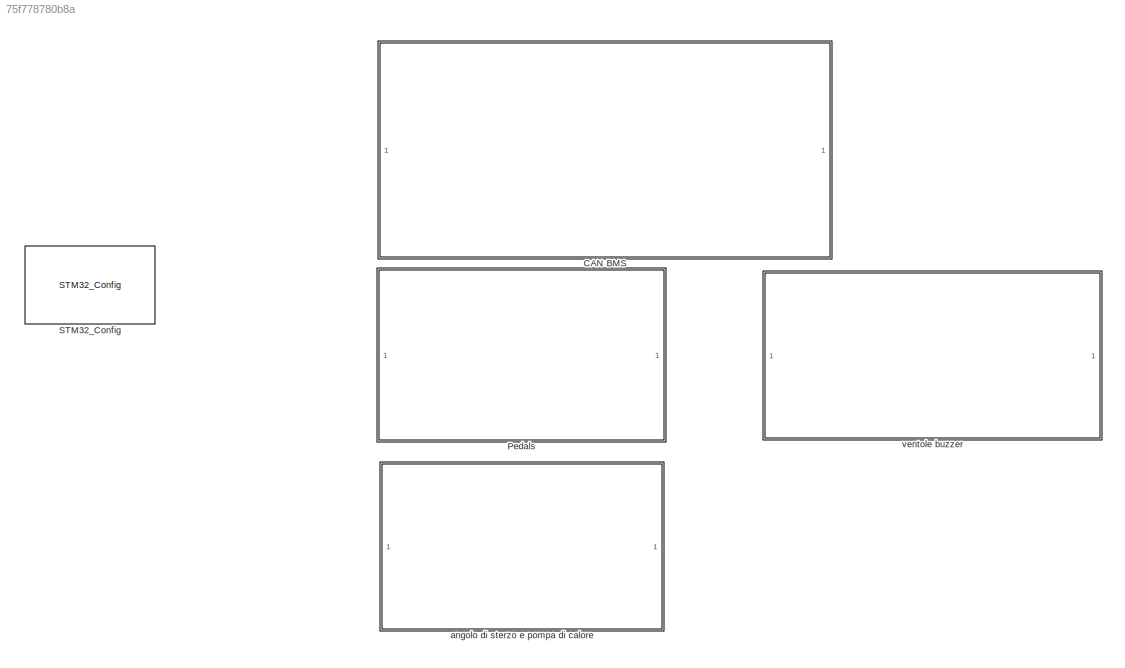
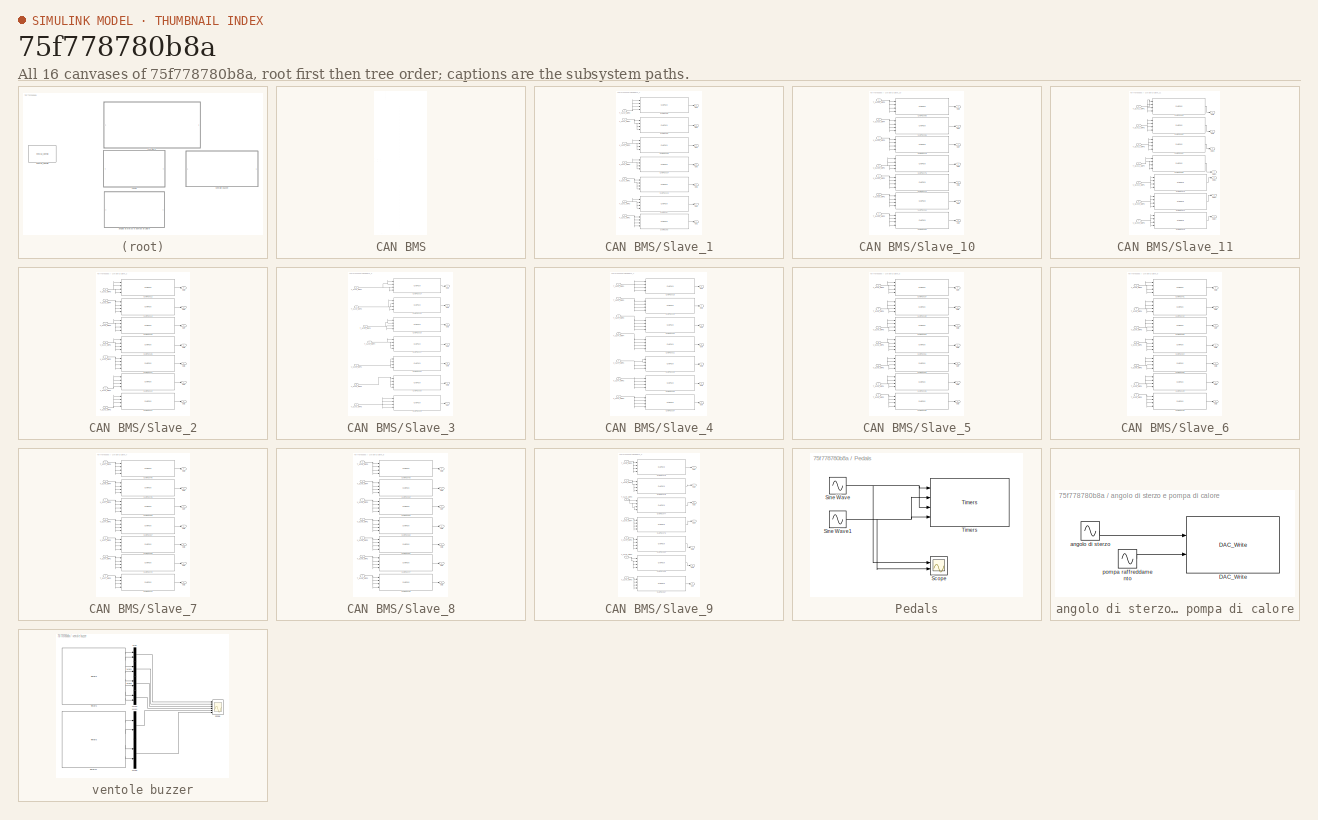
[diagram: thumbnail index - all 16 canvases of the model, root first then tree order]
MODEL slx_75f778780b8a
KIND model
CONFIG AbsTol = auto
CONFIG EnableMultiTasking = off
CONFIG FixedStep = 1e-3
CONFIG MaxStep = auto
CONFIG MinStep = auto
CONFIG RelTol = 1e-3
CONFIG SampleTimeConstraint = Unconstrained
CONFIG SolverName = FixedStepDiscrete
CONFIG StartTime = 0.0
CONFIG StopTime = inf
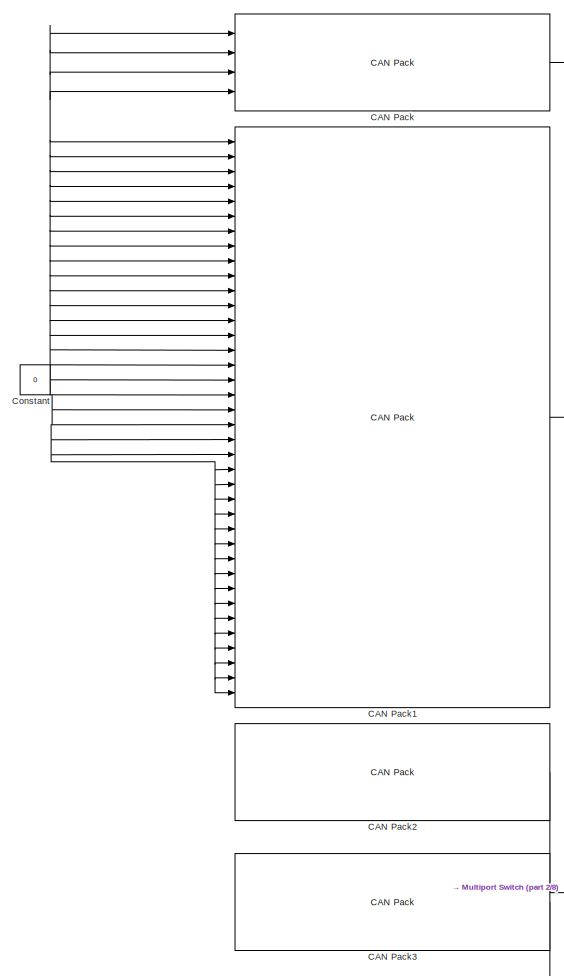
[diagram: CAN BMS - part 1/8, top left region]
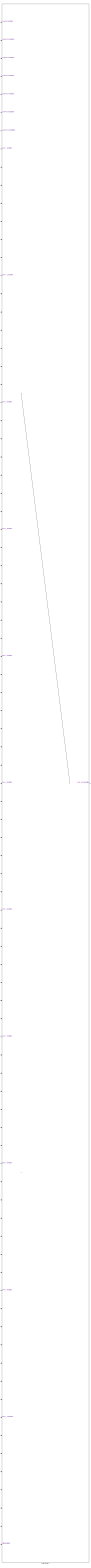
[diagram: CAN BMS - part 2/8, center side, full height]
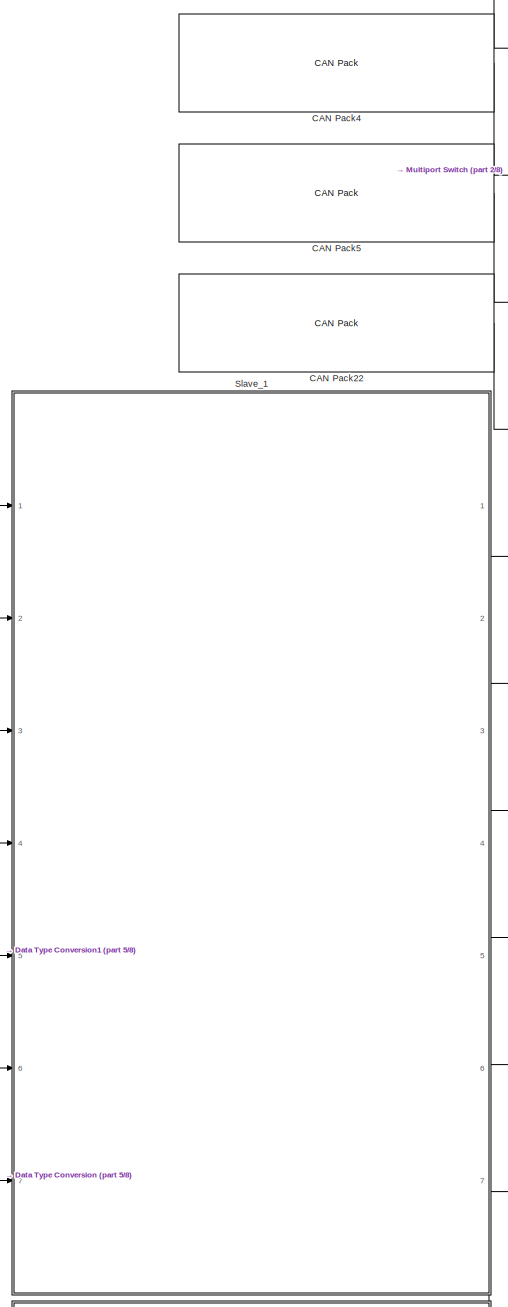
[diagram: CAN BMS - part 3/8, top left region]
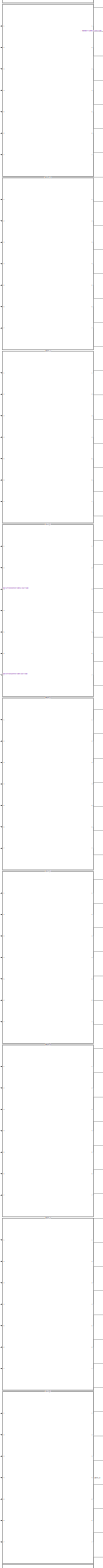
[diagram: CAN BMS - part 4/8, middle left region]
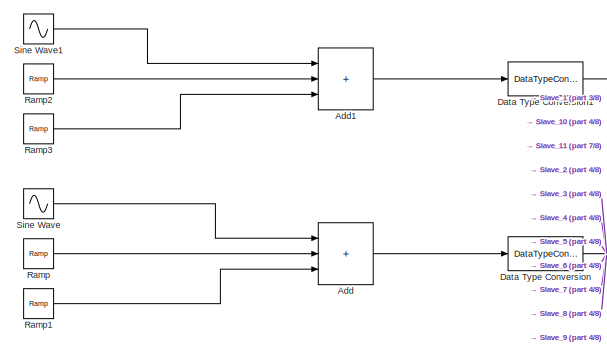
[diagram: CAN BMS - part 5/8, middle left region]
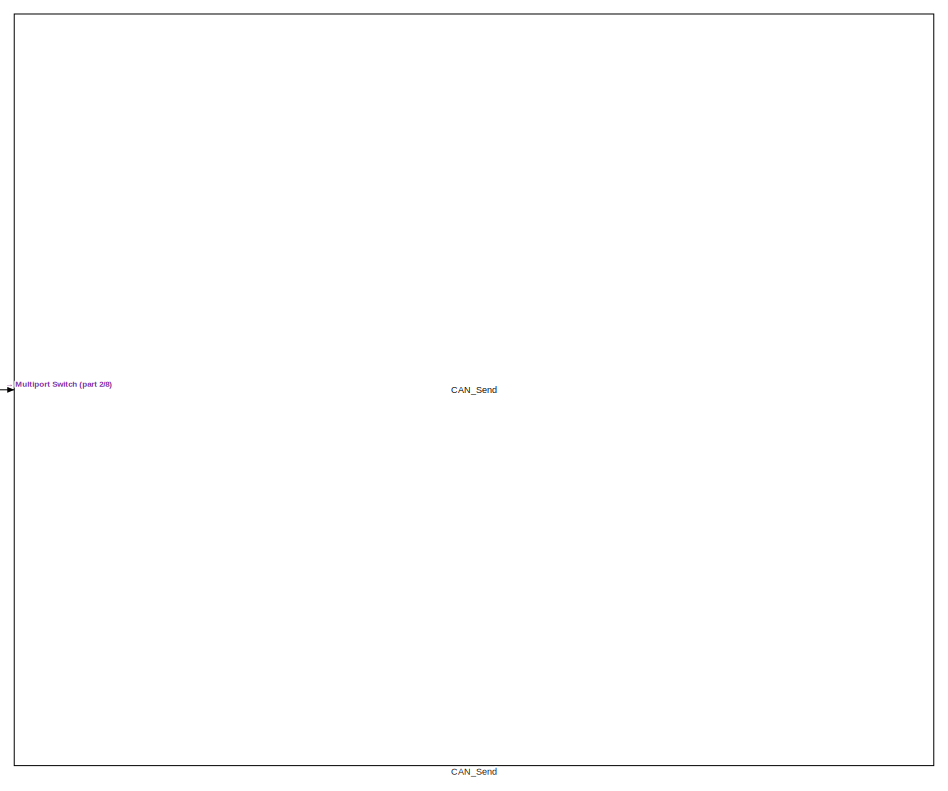
[diagram: CAN BMS - part 6/8, middle right region]
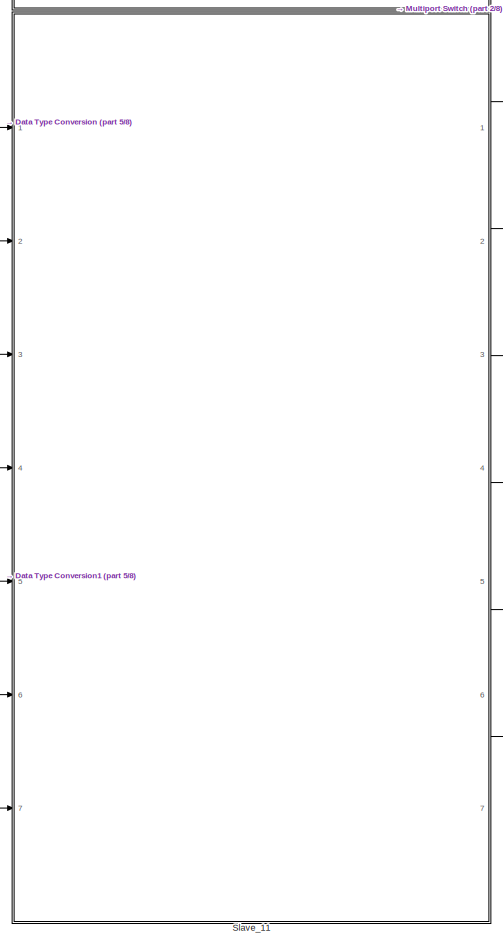
[diagram: CAN BMS - part 7/8, bottom left region]
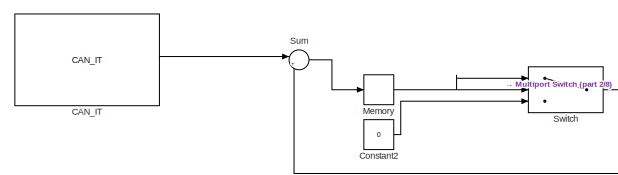
[diagram: CAN BMS - part 8/8, bottom left region]
BLOCK [SubSystem] CAN BMS
  Ports = []
  RequestExecContextInheritance = off
BLOCK [Sum] CAN BMS/Add
  IconShape = rectangular
  Inputs = +++
  Ports = [3, 1]
BLOCK [Sum] CAN BMS/Add1
  IconShape = rectangular
  Inputs = +++
  Ports = [3, 1]
BLOCK [Reference] CAN BMS/CAN Pack  REF=canmsglib/CAN Pack
  Ports = [4, 1]
  SourceBlock = canmsglib/CAN Pack
  SourceProductBaseCode = ME,XP,VN
  SourceType = CAN Pack
BLOCK [Reference] CAN BMS/CAN Pack1  REF=canmsglib/CAN Pack
  Ports = [38, 1]
  SourceBlock = canmsglib/CAN Pack
  SourceProductBaseCode = ME,XP,VN
  SourceType = CAN Pack
BLOCK [Reference] CAN BMS/CAN Pack2  REF=canmsglib/CAN Pack
  Ports = [4, 1]
  SourceBlock = canmsglib/CAN Pack
  SourceProductBaseCode = ME,XP,VN
  SourceType = CAN Pack
BLOCK [Reference] CAN BMS/CAN Pack22  REF=canmsglib/CAN Pack
  Ports = [5, 1]
  SourceBlock = canmsglib/CAN Pack
  SourceProductBaseCode = ME,XP,VN
  SourceType = CAN Pack
BLOCK [Reference] CAN BMS/CAN Pack3  REF=canmsglib/CAN Pack
  Ports = [4, 1]
  SourceBlock = canmsglib/CAN Pack
  SourceProductBaseCode = ME,XP,VN
  SourceType = CAN Pack
BLOCK [Reference] CAN BMS/CAN Pack4  REF=canmsglib/CAN Pack
  Ports = [2, 1]
  SourceBlock = canmsglib/CAN Pack
  SourceProductBaseCode = ME,XP,VN
  SourceType = CAN Pack
BLOCK [Reference] CAN BMS/CAN Pack5  REF=canmsglib/CAN Pack
  Ports = [5, 1]
  SourceBlock = canmsglib/CAN Pack
  SourceProductBaseCode = ME,XP,VN
  SourceType = CAN Pack
BLOCK [Reference] CAN BMS/CAN_IT  REF=CAN_Lib/CAN_IT
  NameLocation = top
  Ports = [0, 1]
  SourceBlock = CAN_Lib/CAN_IT
  SourceProductName = Target Support Package - STM32 Adapter
  SourceType = CAN_IT
BLOCK [Reference] CAN BMS/CAN_Send  REF=CAN_Lib/CAN_Send
  NameLocation = top
  Ports = [1]
  SourceBlock = CAN_Lib/CAN_Send
  SourceProductName = Target Support Package - STM32 Adapter
  SourceType = CAN_Send
BLOCK [Constant] CAN BMS/Constant
  Value = 0
BLOCK [Constant] CAN BMS/Constant2
  Value = 0
BLOCK [DataTypeConversion] CAN BMS/Data Type Conversion
  OutDataTypeStr = uint16
  RndMeth = Floor
  SaturateOnIntegerOverflow = off
BLOCK [DataTypeConversion] CAN BMS/Data Type Conversion1
  OutDataTypeStr = uint16
  RndMeth = Floor
  SaturateOnIntegerOverflow = off
BLOCK [Memory] CAN BMS/Memory
BLOCK [MultiPortSwitch] CAN BMS/Multiport Switch
  DataPortForDefault = Additional data port
  InputSameDT = off
  Inputs = 83
  Ports = [85, 1]
  SaturateOnIntegerOverflow = off
BLOCK [Reference] CAN BMS/Ramp  REF=simulink/Sources/Ramp
  Ports = [0, 1]
  SourceBlock = simulink/Sources/Ramp
  SourceProductBaseCode = SL
  SourceType = Ramp
BLOCK [Reference] CAN BMS/Ramp1  REF=simulink/Sources/Ramp
  Ports = [0, 1]
  SourceBlock = simulink/Sources/Ramp
  SourceProductBaseCode = SL
  SourceType = Ramp
BLOCK [Reference] CAN BMS/Ramp2  REF=simulink/Sources/Ramp
  Ports = [0, 1]
  SourceBlock = simulink/Sources/Ramp
  SourceProductBaseCode = SL
  SourceType = Ramp
BLOCK [Reference] CAN BMS/Ramp3  REF=simulink/Sources/Ramp
  Ports = [0, 1]
  SourceBlock = simulink/Sources/Ramp
  SourceProductBaseCode = SL
  SourceType = Ramp
BLOCK [Sin] CAN BMS/Sine Wave
  Amplitude = 0.05
  Frequency = 2
  Ports = [0, 1]
  SampleTime = 0
BLOCK [Sin] CAN BMS/Sine Wave1
  Amplitude = 0.05
  Frequency = 2
  Ports = [0, 1]
  SampleTime = 0
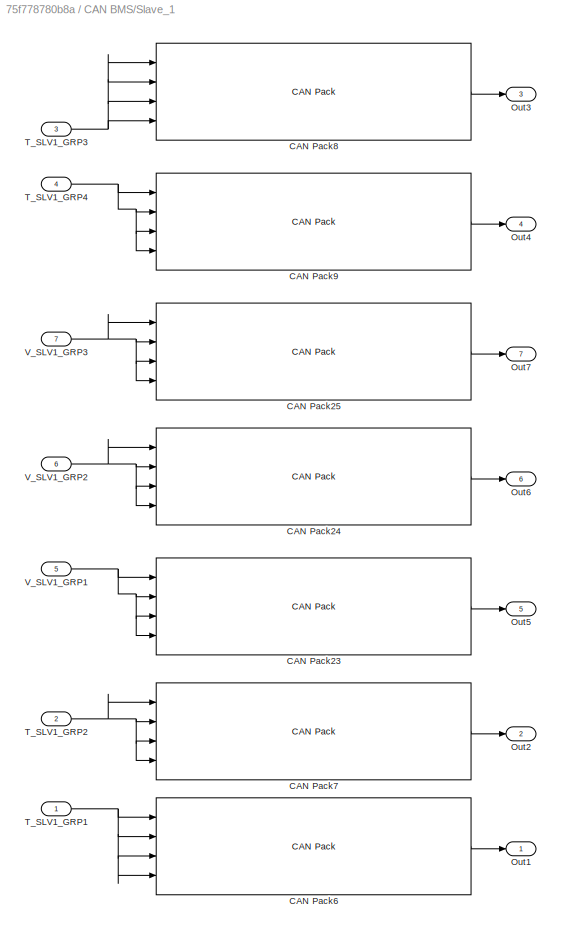
BLOCK [SubSystem] CAN BMS/Slave_1
  Ports = [7, 7]
  RequestExecContextInheritance = off
BLOCK [Reference] CAN BMS/Slave_1/CAN Pack23  REF=canmsglib/CAN Pack
  Ports = [4, 1]
  SourceBlock = canmsglib/CAN Pack
  SourceProductBaseCode = ME,XP,VN
  SourceType = CAN Pack
BLOCK [Reference] CAN BMS/Slave_1/CAN Pack24  REF=canmsglib/CAN Pack
  Ports = [4, 1]
  SourceBlock = canmsglib/CAN Pack
  SourceProductBaseCode = ME,XP,VN
  SourceType = CAN Pack
BLOCK [Reference] CAN BMS/Slave_1/CAN Pack25  REF=canmsglib/CAN Pack
  Ports = [4, 1]
  SourceBlock = canmsglib/CAN Pack
  SourceProductBaseCode = ME,XP,VN
  SourceType = CAN Pack
BLOCK [Reference] CAN BMS/Slave_1/CAN Pack6  REF=canmsglib/CAN Pack
  Ports = [4, 1]
  SourceBlock = canmsglib/CAN Pack
  SourceProductBaseCode = ME,XP,VN
  SourceType = CAN Pack
BLOCK [Reference] CAN BMS/Slave_1/CAN Pack7  REF=canmsglib/CAN Pack
  Ports = [4, 1]
  SourceBlock = canmsglib/CAN Pack
  SourceProductBaseCode = ME,XP,VN
  SourceType = CAN Pack
BLOCK [Reference] CAN BMS/Slave_1/CAN Pack8  REF=canmsglib/CAN Pack
  Ports = [4, 1]
  SourceBlock = canmsglib/CAN Pack
  SourceProductBaseCode = ME,XP,VN
  SourceType = CAN Pack
BLOCK [Reference] CAN BMS/Slave_1/CAN Pack9  REF=canmsglib/CAN Pack
  Ports = [4, 1]
  SourceBlock = canmsglib/CAN Pack
  SourceProductBaseCode = ME,XP,VN
  SourceType = CAN Pack
BLOCK [Outport] CAN BMS/Slave_1/Out1
BLOCK [Outport] CAN BMS/Slave_1/Out2
  Port = 2
BLOCK [Outport] CAN BMS/Slave_1/Out3
  Port = 3
BLOCK [Outport] CAN BMS/Slave_1/Out4
  Port = 4
BLOCK [Outport] CAN BMS/Slave_1/Out5
  Port = 5
BLOCK [Outport] CAN BMS/Slave_1/Out6
  Port = 6
BLOCK [Outport] CAN BMS/Slave_1/Out7
  Port = 7
BLOCK [Inport] CAN BMS/Slave_1/T_SLV1_GRP1
BLOCK [Inport] CAN BMS/Slave_1/T_SLV1_GRP2
  Port = 2
BLOCK [Inport] CAN BMS/Slave_1/T_SLV1_GRP3
  Port = 3
BLOCK [Inport] CAN BMS/Slave_1/T_SLV1_GRP4
  Port = 4
BLOCK [Inport] CAN BMS/Slave_1/V_SLV1_GRP1
  Port = 5
BLOCK [Inport] CAN BMS/Slave_1/V_SLV1_GRP2
  Port = 6
BLOCK [Inport] CAN BMS/Slave_1/V_SLV1_GRP3
  Port = 7
BLOCK [SubSystem] CAN BMS/Slave_10
  Ports = [7, 7]
  RequestExecContextInheritance = off
BLOCK [Reference] CAN BMS/Slave_10/CAN Pack63  REF=canmsglib/CAN Pack
  Ports = [4, 1]
  SourceBlock = canmsglib/CAN Pack
  SourceProductBaseCode = ME,XP,VN
  SourceType = CAN Pack
BLOCK [Reference] CAN BMS/Slave_10/CAN Pack64  REF=canmsglib/CAN Pack
  Ports = [4, 1]
  SourceBlock = canmsglib/CAN Pack
  SourceProductBaseCode = ME,XP,VN
  SourceType = CAN Pack
BLOCK [Reference] CAN BMS/Slave_10/CAN Pack65  REF=canmsglib/CAN Pack
  Ports = [4, 1]
  SourceBlock = canmsglib/CAN Pack
  SourceProductBaseCode = ME,XP,VN
  SourceType = CAN Pack
BLOCK [Reference] CAN BMS/Slave_10/CAN Pack66  REF=canmsglib/CAN Pack
  Ports = [4, 1]
  SourceBlock = canmsglib/CAN Pack
  SourceProductBaseCode = ME,XP,VN
  SourceType = CAN Pack
BLOCK [Reference] CAN BMS/Slave_10/CAN Pack73  REF=canmsglib/CAN Pack
  Ports = [4, 1]
  SourceBlock = canmsglib/CAN Pack
  SourceProductBaseCode = ME,XP,VN
  SourceType = CAN Pack
BLOCK [Reference] CAN BMS/Slave_10/CAN Pack74  REF=canmsglib/CAN Pack
  Ports = [4, 1]
  SourceBlock = canmsglib/CAN Pack
  SourceProductBaseCode = ME,XP,VN
  SourceType = CAN Pack
BLOCK [Reference] CAN BMS/Slave_10/CAN Pack75  REF=canmsglib/CAN Pack
  Ports = [4, 1]
  SourceBlock = canmsglib/CAN Pack
  SourceProductBaseCode = ME,XP,VN
  SourceType = CAN Pack
BLOCK [Outport] CAN BMS/Slave_10/Out1
BLOCK [Outport] CAN BMS/Slave_10/Out2
  Port = 2
BLOCK [Outport] CAN BMS/Slave_10/Out3
  Port = 3
BLOCK [Outport] CAN BMS/Slave_10/Out4
  Port = 4
BLOCK [Outport] CAN BMS/Slave_10/Out5
  Port = 5
BLOCK [Outport] CAN BMS/Slave_10/Out6
  Port = 6
BLOCK [Outport] CAN BMS/Slave_10/Out7
  Port = 7
BLOCK [Inport] CAN BMS/Slave_10/T_SLV10_GRP1
BLOCK [Inport] CAN BMS/Slave_10/T_SLV10_GRP2
  Port = 2
BLOCK [Inport] CAN BMS/Slave_10/T_SLV10_GRP3
  Port = 3
BLOCK [Inport] CAN BMS/Slave_10/T_SLV10_GRP4
  Port = 4
BLOCK [Inport] CAN BMS/Slave_10/V_SLV10_GRP1
  Port = 5
BLOCK [Inport] CAN BMS/Slave_10/V_SLV10_GRP2
  Port = 6
BLOCK [Inport] CAN BMS/Slave_10/V_SLV10_GRP3
  Port = 7
BLOCK [SubSystem] CAN BMS/Slave_11
  Ports = [7, 7]
  RequestExecContextInheritance = off
BLOCK [Reference] CAN BMS/Slave_11/CAN Pack70  REF=canmsglib/CAN Pack
  Ports = [4, 1]
  SourceBlock = canmsglib/CAN Pack
  SourceProductBaseCode = ME,XP,VN
  SourceType = CAN Pack
BLOCK [Reference] CAN BMS/Slave_11/CAN Pack71  REF=canmsglib/CAN Pack
  Ports = [4, 1]
  SourceBlock = canmsglib/CAN Pack
  SourceProductBaseCode = ME,XP,VN
  SourceType = CAN Pack
BLOCK [Reference] CAN BMS/Slave_11/CAN Pack72  REF=canmsglib/CAN Pack
  Ports = [4, 1]
  SourceBlock = canmsglib/CAN Pack
  SourceProductBaseCode = ME,XP,VN
  SourceType = CAN Pack
BLOCK [Reference] CAN BMS/Slave_11/CAN Pack80  REF=canmsglib/CAN Pack
  Ports = [4, 1]
  SourceBlock = canmsglib/CAN Pack
  SourceProductBaseCode = ME,XP,VN
  SourceType = CAN Pack
BLOCK [Reference] CAN BMS/Slave_11/CAN Pack81  REF=canmsglib/CAN Pack
  Ports = [4, 1]
  SourceBlock = canmsglib/CAN Pack
  SourceProductBaseCode = ME,XP,VN
  SourceType = CAN Pack
BLOCK [Reference] CAN BMS/Slave_11/CAN Pack82  REF=canmsglib/CAN Pack
  Ports = [4, 1]
  SourceBlock = canmsglib/CAN Pack
  SourceProductBaseCode = ME,XP,VN
  SourceType = CAN Pack
BLOCK [Reference] CAN BMS/Slave_11/CAN Pack83  REF=canmsglib/CAN Pack
  Ports = [4, 1]
  SourceBlock = canmsglib/CAN Pack
  SourceProductBaseCode = ME,XP,VN
  SourceType = CAN Pack
BLOCK [Outport] CAN BMS/Slave_11/Out10
  Port = 3
BLOCK [Outport] CAN BMS/Slave_11/Out11
  Port = 4
BLOCK [Outport] CAN BMS/Slave_11/Out12
  Port = 5
BLOCK [Outport] CAN BMS/Slave_11/Out13
  Port = 6
BLOCK [Outport] CAN BMS/Slave_11/Out14
  Port = 7
BLOCK [Outport] CAN BMS/Slave_11/Out8
BLOCK [Outport] CAN BMS/Slave_11/Out9
  Port = 2
BLOCK [Inport] CAN BMS/Slave_11/T_SLV11_GRP1
BLOCK [Inport] CAN BMS/Slave_11/T_SLV11_GRP2
  Port = 2
BLOCK [Inport] CAN BMS/Slave_11/T_SLV11_GRP3
  Port = 3
BLOCK [Inport] CAN BMS/Slave_11/T_SLV11_GRP4
  Port = 4
BLOCK [Inport] CAN BMS/Slave_11/V_SLV11_GRP1
  Port = 5
BLOCK [Inport] CAN BMS/Slave_11/V_SLV11_GRP2
  Port = 6
BLOCK [Inport] CAN BMS/Slave_11/V_SLV11_GRP3
  Port = 7
BLOCK [SubSystem] CAN BMS/Slave_2
  Ports = [7, 7]
  RequestExecContextInheritance = off
BLOCK [Reference] CAN BMS/Slave_2/CAN Pack10  REF=canmsglib/CAN Pack
  Ports = [4, 1]
  SourceBlock = canmsglib/CAN Pack
  SourceProductBaseCode = ME,XP,VN
  SourceType = CAN Pack
BLOCK [Reference] CAN BMS/Slave_2/CAN Pack11  REF=canmsglib/CAN Pack
  Ports = [4, 1]
  SourceBlock = canmsglib/CAN Pack
  SourceProductBaseCode = ME,XP,VN
  SourceType = CAN Pack
BLOCK [Reference] CAN BMS/Slave_2/CAN Pack12  REF=canmsglib/CAN Pack
  Ports = [4, 1]
  SourceBlock = canmsglib/CAN Pack
  SourceProductBaseCode = ME,XP,VN
  SourceType = CAN Pack
BLOCK [Reference] CAN BMS/Slave_2/CAN Pack13  REF=canmsglib/CAN Pack
  Ports = [4, 1]
  SourceBlock = canmsglib/CAN Pack
  SourceProductBaseCode = ME,XP,VN
  SourceType = CAN Pack
BLOCK [Reference] CAN BMS/Slave_2/CAN Pack26  REF=canmsglib/CAN Pack
  Ports = [4, 1]
  SourceBlock = canmsglib/CAN Pack
  SourceProductBaseCode = ME,XP,VN
  SourceType = CAN Pack
BLOCK [Reference] CAN BMS/Slave_2/CAN Pack27  REF=canmsglib/CAN Pack
  Ports = [4, 1]
  SourceBlock = canmsglib/CAN Pack
  SourceProductBaseCode = ME,XP,VN
  SourceType = CAN Pack
BLOCK [Reference] CAN BMS/Slave_2/CAN Pack32  REF=canmsglib/CAN Pack
  Ports = [4, 1]
  SourceBlock = canmsglib/CAN Pack
  SourceProductBaseCode = ME,XP,VN
  SourceType = CAN Pack
BLOCK [Outport] CAN BMS/Slave_2/Out1
BLOCK [Outport] CAN BMS/Slave_2/Out2
  Port = 2
BLOCK [Outport] CAN BMS/Slave_2/Out3
  Port = 3
BLOCK [Outport] CAN BMS/Slave_2/Out4
  Port = 4
BLOCK [Outport] CAN BMS/Slave_2/Out5
  Port = 5
BLOCK [Outport] CAN BMS/Slave_2/Out6
  Port = 6
BLOCK [Outport] CAN BMS/Slave_2/Out7
  Port = 7
BLOCK [Inport] CAN BMS/Slave_2/T_SLV2_GRP1
BLOCK [Inport] CAN BMS/Slave_2/T_SLV2_GRP2
  Port = 2
BLOCK [Inport] CAN BMS/Slave_2/T_SLV2_GRP3
  Port = 3
BLOCK [Inport] CAN BMS/Slave_2/T_SLV2_GRP4
  Port = 4
BLOCK [Inport] CAN BMS/Slave_2/V_SLV2_GRP1
  Port = 5
BLOCK [Inport] CAN BMS/Slave_2/V_SLV2_GRP2
  Port = 6
BLOCK [Inport] CAN BMS/Slave_2/V_SLV2_GRP3
  Port = 7
BLOCK [SubSystem] CAN BMS/Slave_3
  Ports = [7, 7]
  RequestExecContextInheritance = off
BLOCK [Reference] CAN BMS/Slave_3/CAN Pack14  REF=canmsglib/CAN Pack
  Ports = [4, 1]
  SourceBlock = canmsglib/CAN Pack
  SourceProductBaseCode = ME,XP,VN
  SourceType = CAN Pack
BLOCK [Reference] CAN BMS/Slave_3/CAN Pack15  REF=canmsglib/CAN Pack
  Ports = [4, 1]
  SourceBlock = canmsglib/CAN Pack
  SourceProductBaseCode = ME,XP,VN
  SourceType = CAN Pack
BLOCK [Reference] CAN BMS/Slave_3/CAN Pack16  REF=canmsglib/CAN Pack
  Ports = [4, 1]
  SourceBlock = canmsglib/CAN Pack
  SourceProductBaseCode = ME,XP,VN
  SourceType = CAN Pack
BLOCK [Reference] CAN BMS/Slave_3/CAN Pack17  REF=canmsglib/CAN Pack
  Ports = [4, 1]
  SourceBlock = canmsglib/CAN Pack
  SourceProductBaseCode = ME,XP,VN
  SourceType = CAN Pack
BLOCK [Reference] CAN BMS/Slave_3/CAN Pack29  REF=canmsglib/CAN Pack
  Ports = [4, 1]
  SourceBlock = canmsglib/CAN Pack
  SourceProductBaseCode = ME,XP,VN
  SourceType = CAN Pack
BLOCK [Reference] CAN BMS/Slave_3/CAN Pack30  REF=canmsglib/CAN Pack
  Ports = [4, 1]
  SourceBlock = canmsglib/CAN Pack
  SourceProductBaseCode = ME,XP,VN
  SourceType = CAN Pack
BLOCK [Reference] CAN BMS/Slave_3/CAN Pack31  REF=canmsglib/CAN Pack
  Ports = [4, 1]
  SourceBlock = canmsglib/CAN Pack
  SourceProductBaseCode = ME,XP,VN
  SourceType = CAN Pack
BLOCK [Outport] CAN BMS/Slave_3/Out1
BLOCK [Outport] CAN BMS/Slave_3/Out2
  Port = 2
BLOCK [Outport] CAN BMS/Slave_3/Out3
  Port = 3
BLOCK [Outport] CAN BMS/Slave_3/Out4
  Port = 4
BLOCK [Outport] CAN BMS/Slave_3/Out5
  Port = 5
BLOCK [Outport] CAN BMS/Slave_3/Out6
  Port = 6
BLOCK [Outport] CAN BMS/Slave_3/Out7
  Port = 7
BLOCK [Inport] CAN BMS/Slave_3/T_SLV3_GRP1
BLOCK [Inport] CAN BMS/Slave_3/T_SLV3_GRP2
  Port = 2
BLOCK [Inport] CAN BMS/Slave_3/T_SLV3_GRP3
  Port = 3
BLOCK [Inport] CAN BMS/Slave_3/T_SLV3_GRP4
  Port = 4
BLOCK [Inport] CAN BMS/Slave_3/V_SLV3_GRP1
  Port = 5
BLOCK [Inport] CAN BMS/Slave_3/V_SLV3_GRP2
  Port = 6
BLOCK [Inport] CAN BMS/Slave_3/V_SLV3_GRP3
  Port = 7
BLOCK [SubSystem] CAN BMS/Slave_4
  Ports = [7, 7]
  RequestExecContextInheritance = off
BLOCK [Reference] CAN BMS/Slave_4/CAN Pack18  REF=canmsglib/CAN Pack
  Ports = [4, 1]
  SourceBlock = canmsglib/CAN Pack
  SourceProductBaseCode = ME,XP,VN
  SourceType = CAN Pack
BLOCK [Reference] CAN BMS/Slave_4/CAN Pack19  REF=canmsglib/CAN Pack
  Ports = [4, 1]
  SourceBlock = canmsglib/CAN Pack
  SourceProductBaseCode = ME,XP,VN
  SourceType = CAN Pack
BLOCK [Reference] CAN BMS/Slave_4/CAN Pack20  REF=canmsglib/CAN Pack
  Ports = [4, 1]
  SourceBlock = canmsglib/CAN Pack
  SourceProductBaseCode = ME,XP,VN
  SourceType = CAN Pack
BLOCK [Reference] CAN BMS/Slave_4/CAN Pack21  REF=canmsglib/CAN Pack
  Ports = [4, 1]
  SourceBlock = canmsglib/CAN Pack
  SourceProductBaseCode = ME,XP,VN
  SourceType = CAN Pack
BLOCK [Reference] CAN BMS/Slave_4/CAN Pack28  REF=canmsglib/CAN Pack
  Ports = [4, 1]
  SourceBlock = canmsglib/CAN Pack
  SourceProductBaseCode = ME,XP,VN
  SourceType = CAN Pack
BLOCK [Reference] CAN BMS/Slave_4/CAN Pack33  REF=canmsglib/CAN Pack
  Ports = [4, 1]
  SourceBlock = canmsglib/CAN Pack
  SourceProductBaseCode = ME,XP,VN
  SourceType = CAN Pack
BLOCK [Reference] CAN BMS/Slave_4/CAN Pack34  REF=canmsglib/CAN Pack
  Ports = [4, 1]
  SourceBlock = canmsglib/CAN Pack
  SourceProductBaseCode = ME,XP,VN
  SourceType = CAN Pack
BLOCK [Outport] CAN BMS/Slave_4/Out1
BLOCK [Outport] CAN BMS/Slave_4/Out2
  Port = 2
BLOCK [Outport] CAN BMS/Slave_4/Out3
  Port = 3
BLOCK [Outport] CAN BMS/Slave_4/Out4
  Port = 4
BLOCK [Outport] CAN BMS/Slave_4/Out5
  Port = 5
BLOCK [Outport] CAN BMS/Slave_4/Out6
  Port = 6
BLOCK [Outport] CAN BMS/Slave_4/Out7
  Port = 7
BLOCK [Inport] CAN BMS/Slave_4/T_SLV4_GRP1
BLOCK [Inport] CAN BMS/Slave_4/T_SLV4_GRP2
  Port = 2
BLOCK [Inport] CAN BMS/Slave_4/T_SLV4_GRP3
  Port = 3
BLOCK [Inport] CAN BMS/Slave_4/T_SLV4_GRP4
  Port = 4
BLOCK [Inport] CAN BMS/Slave_4/V_SLV4_GRP1
  Port = 5
BLOCK [Inport] CAN BMS/Slave_4/V_SLV4_GRP2
  Port = 6
BLOCK [Inport] CAN BMS/Slave_4/V_SLV4_GRP3
  Port = 7
BLOCK [SubSystem] CAN BMS/Slave_5
  Ports = [7, 7]
  RequestExecContextInheritance = off
BLOCK [Reference] CAN BMS/Slave_5/CAN Pack35  REF=canmsglib/CAN Pack
  Ports = [4, 1]
  SourceBlock = canmsglib/CAN Pack
  SourceProductBaseCode = ME,XP,VN
  SourceType = CAN Pack
BLOCK [Reference] CAN BMS/Slave_5/CAN Pack36  REF=canmsglib/CAN Pack
  Ports = [4, 1]
  SourceBlock = canmsglib/CAN Pack
  SourceProductBaseCode = ME,XP,VN
  SourceType = CAN Pack
BLOCK [Reference] CAN BMS/Slave_5/CAN Pack37  REF=canmsglib/CAN Pack
  Ports = [4, 1]
  SourceBlock = canmsglib/CAN Pack
  SourceProductBaseCode = ME,XP,VN
  SourceType = CAN Pack
BLOCK [Reference] CAN BMS/Slave_5/CAN Pack38  REF=canmsglib/CAN Pack
  Ports = [4, 1]
  SourceBlock = canmsglib/CAN Pack
  SourceProductBaseCode = ME,XP,VN
  SourceType = CAN Pack
BLOCK [Reference] CAN BMS/Slave_5/CAN Pack51  REF=canmsglib/CAN Pack
  Ports = [4, 1]
  SourceBlock = canmsglib/CAN Pack
  SourceProductBaseCode = ME,XP,VN
  SourceType = CAN Pack
BLOCK [Reference] CAN BMS/Slave_5/CAN Pack52  REF=canmsglib/CAN Pack
  Ports = [4, 1]
  SourceBlock = canmsglib/CAN Pack
  SourceProductBaseCode = ME,XP,VN
  SourceType = CAN Pack
BLOCK [Reference] CAN BMS/Slave_5/CAN Pack53  REF=canmsglib/CAN Pack
  Ports = [4, 1]
  SourceBlock = canmsglib/CAN Pack
  SourceProductBaseCode = ME,XP,VN
  SourceType = CAN Pack
BLOCK [Outport] CAN BMS/Slave_5/Out2
BLOCK [Outport] CAN BMS/Slave_5/Out3
  Port = 2
BLOCK [Outport] CAN BMS/Slave_5/Out4
  Port = 3
BLOCK [Outport] CAN BMS/Slave_5/Out5
  Port = 4
BLOCK [Outport] CAN BMS/Slave_5/Out6
  Port = 5
BLOCK [Outport] CAN BMS/Slave_5/Out7
  Port = 6
BLOCK [Outport] CAN BMS/Slave_5/Out8
  Port = 7
BLOCK [Inport] CAN BMS/Slave_5/T_SLV5_GRP1
BLOCK [Inport] CAN BMS/Slave_5/T_SLV5_GRP2
  Port = 2
BLOCK [Inport] CAN BMS/Slave_5/T_SLV5_GRP3
  Port = 3
BLOCK [Inport] CAN BMS/Slave_5/T_SLV5_GRP4
  Port = 4
BLOCK [Inport] CAN BMS/Slave_5/V_SLV5_GRP1
  Port = 5
BLOCK [Inport] CAN BMS/Slave_5/V_SLV5_GRP2
  Port = 6
BLOCK [Inport] CAN BMS/Slave_5/V_SLV5_GRP3
  Port = 7
BLOCK [SubSystem] CAN BMS/Slave_6
  Ports = [7, 7]
  RequestExecContextInheritance = off
BLOCK [Reference] CAN BMS/Slave_6/CAN Pack39  REF=canmsglib/CAN Pack
  Ports = [4, 1]
  SourceBlock = canmsglib/CAN Pack
  SourceProductBaseCode = ME,XP,VN
  SourceType = CAN Pack
BLOCK [Reference] CAN BMS/Slave_6/CAN Pack40  REF=canmsglib/CAN Pack
  Ports = [4, 1]
  SourceBlock = canmsglib/CAN Pack
  SourceProductBaseCode = ME,XP,VN
  SourceType = CAN Pack
BLOCK [Reference] CAN BMS/Slave_6/CAN Pack41  REF=canmsglib/CAN Pack
  Ports = [4, 1]
  SourceBlock = canmsglib/CAN Pack
  SourceProductBaseCode = ME,XP,VN
  SourceType = CAN Pack
BLOCK [Reference] CAN BMS/Slave_6/CAN Pack42  REF=canmsglib/CAN Pack
  Ports = [4, 1]
  SourceBlock = canmsglib/CAN Pack
  SourceProductBaseCode = ME,XP,VN
  SourceType = CAN Pack
BLOCK [Reference] CAN BMS/Slave_6/CAN Pack54  REF=canmsglib/CAN Pack
  Ports = [4, 1]
  SourceBlock = canmsglib/CAN Pack
  SourceProductBaseCode = ME,XP,VN
  SourceType = CAN Pack
BLOCK [Reference] CAN BMS/Slave_6/CAN Pack55  REF=canmsglib/CAN Pack
  Ports = [4, 1]
  SourceBlock = canmsglib/CAN Pack
  SourceProductBaseCode = ME,XP,VN
  SourceType = CAN Pack
BLOCK [Reference] CAN BMS/Slave_6/CAN Pack56  REF=canmsglib/CAN Pack
  Ports = [4, 1]
  SourceBlock = canmsglib/CAN Pack
  SourceProductBaseCode = ME,XP,VN
  SourceType = CAN Pack
BLOCK [Outport] CAN BMS/Slave_6/Out1
BLOCK [Outport] CAN BMS/Slave_6/Out2
  Port = 2
BLOCK [Outport] CAN BMS/Slave_6/Out3
  Port = 3
BLOCK [Outport] CAN BMS/Slave_6/Out4
  Port = 4
BLOCK [Outport] CAN BMS/Slave_6/Out5
  NameLocation = left
  Port = 5
BLOCK [Outport] CAN BMS/Slave_6/Out6
  Port = 6
BLOCK [Outport] CAN BMS/Slave_6/Out7
  Port = 7
BLOCK [Inport] CAN BMS/Slave_6/T_SLV6_GRP1
BLOCK [Inport] CAN BMS/Slave_6/T_SLV6_GRP2
  Port = 2
BLOCK [Inport] CAN BMS/Slave_6/T_SLV6_GRP3
  Port = 3
BLOCK [Inport] CAN BMS/Slave_6/T_SLV6_GRP4
  Port = 4
BLOCK [Inport] CAN BMS/Slave_6/V_SLV6_GRP1
  Port = 5
BLOCK [Inport] CAN BMS/Slave_6/V_SLV6_GRP2
  Port = 6
BLOCK [Inport] CAN BMS/Slave_6/V_SLV6_GRP3
  Port = 7
BLOCK [SubSystem] CAN BMS/Slave_7
  Ports = [7, 7]
  RequestExecContextInheritance = off
BLOCK [Reference] CAN BMS/Slave_7/CAN Pack43  REF=canmsglib/CAN Pack
  Ports = [4, 1]
  SourceBlock = canmsglib/CAN Pack
  SourceProductBaseCode = ME,XP,VN
  SourceType = CAN Pack
BLOCK [Reference] CAN BMS/Slave_7/CAN Pack44  REF=canmsglib/CAN Pack
  Ports = [4, 1]
  SourceBlock = canmsglib/CAN Pack
  SourceProductBaseCode = ME,XP,VN
  SourceType = CAN Pack
BLOCK [Reference] CAN BMS/Slave_7/CAN Pack45  REF=canmsglib/CAN Pack
  Ports = [4, 1]
  SourceBlock = canmsglib/CAN Pack
  SourceProductBaseCode = ME,XP,VN
  SourceType = CAN Pack
BLOCK [Reference] CAN BMS/Slave_7/CAN Pack46  REF=canmsglib/CAN Pack
  Ports = [4, 1]
  SourceBlock = canmsglib/CAN Pack
  SourceProductBaseCode = ME,XP,VN
  SourceType = CAN Pack
BLOCK [Reference] CAN BMS/Slave_7/CAN Pack57  REF=canmsglib/CAN Pack
  Ports = [4, 1]
  SourceBlock = canmsglib/CAN Pack
  SourceProductBaseCode = ME,XP,VN
  SourceType = CAN Pack
BLOCK [Reference] CAN BMS/Slave_7/CAN Pack58  REF=canmsglib/CAN Pack
  Ports = [4, 1]
  SourceBlock = canmsglib/CAN Pack
  SourceProductBaseCode = ME,XP,VN
  SourceType = CAN Pack
BLOCK [Reference] CAN BMS/Slave_7/CAN Pack59  REF=canmsglib/CAN Pack
  Ports = [4, 1]
  SourceBlock = canmsglib/CAN Pack
  SourceProductBaseCode = ME,XP,VN
  SourceType = CAN Pack
BLOCK [Outport] CAN BMS/Slave_7/Out1
BLOCK [Outport] CAN BMS/Slave_7/Out2
  Port = 2
BLOCK [Outport] CAN BMS/Slave_7/Out3
  Port = 3
BLOCK [Outport] CAN BMS/Slave_7/Out4
  Port = 4
BLOCK [Outport] CAN BMS/Slave_7/Out5
  Port = 5
BLOCK [Outport] CAN BMS/Slave_7/Out6
  Port = 6
BLOCK [Outport] CAN BMS/Slave_7/Out7
  Port = 7
BLOCK [Inport] CAN BMS/Slave_7/T_SLV6_GRP4
  Port = 4
BLOCK [Inport] CAN BMS/Slave_7/T_SLV7_GRP1
BLOCK [Inport] CAN BMS/Slave_7/T_SLV7_GRP2
  Port = 2
BLOCK [Inport] CAN BMS/Slave_7/T_SLV7_GRP3
  Port = 3
BLOCK [Inport] CAN BMS/Slave_7/V_SLV7_GRP1
  Port = 5
BLOCK [Inport] CAN BMS/Slave_7/V_SLV7_GRP2
  Port = 6
BLOCK [Inport] CAN BMS/Slave_7/V_SLV7_GRP3
  Port = 7
BLOCK [SubSystem] CAN BMS/Slave_8
  Ports = [7, 7]
  RequestExecContextInheritance = off
BLOCK [Reference] CAN BMS/Slave_8/CAN Pack47  REF=canmsglib/CAN Pack
  Ports = [4, 1]
  SourceBlock = canmsglib/CAN Pack
  SourceProductBaseCode = ME,XP,VN
  SourceType = CAN Pack
BLOCK [Reference] CAN BMS/Slave_8/CAN Pack48  REF=canmsglib/CAN Pack
  Ports = [4, 1]
  SourceBlock = canmsglib/CAN Pack
  SourceProductBaseCode = ME,XP,VN
  SourceType = CAN Pack
BLOCK [Reference] CAN BMS/Slave_8/CAN Pack49  REF=canmsglib/CAN Pack
  Ports = [4, 1]
  SourceBlock = canmsglib/CAN Pack
  SourceProductBaseCode = ME,XP,VN
  SourceType = CAN Pack
BLOCK [Reference] CAN BMS/Slave_8/CAN Pack50  REF=canmsglib/CAN Pack
  Ports = [4, 1]
  SourceBlock = canmsglib/CAN Pack
  SourceProductBaseCode = ME,XP,VN
  SourceType = CAN Pack
BLOCK [Reference] CAN BMS/Slave_8/CAN Pack60  REF=canmsglib/CAN Pack
  Ports = [4, 1]
  SourceBlock = canmsglib/CAN Pack
  SourceProductBaseCode = ME,XP,VN
  SourceType = CAN Pack
BLOCK [Reference] CAN BMS/Slave_8/CAN Pack61  REF=canmsglib/CAN Pack
  Ports = [4, 1]
  SourceBlock = canmsglib/CAN Pack
  SourceProductBaseCode = ME,XP,VN
  SourceType = CAN Pack
BLOCK [Reference] CAN BMS/Slave_8/CAN Pack62  REF=canmsglib/CAN Pack
  Ports = [4, 1]
  SourceBlock = canmsglib/CAN Pack
  SourceProductBaseCode = ME,XP,VN
  SourceType = CAN Pack
BLOCK [Outport] CAN BMS/Slave_8/Out1
BLOCK [Outport] CAN BMS/Slave_8/Out2
  Port = 2
BLOCK [Outport] CAN BMS/Slave_8/Out3
  Port = 3
BLOCK [Outport] CAN BMS/Slave_8/Out4
  Port = 4
BLOCK [Outport] CAN BMS/Slave_8/Out5
  Port = 5
BLOCK [Outport] CAN BMS/Slave_8/Out6
  Port = 6
BLOCK [Outport] CAN BMS/Slave_8/Out7
  Port = 7
BLOCK [Inport] CAN BMS/Slave_8/T_SLV8_GRP1
BLOCK [Inport] CAN BMS/Slave_8/T_SLV8_GRP2
  Port = 2
BLOCK [Inport] CAN BMS/Slave_8/T_SLV8_GRP3
  Port = 3
BLOCK [Inport] CAN BMS/Slave_8/T_SLV8_GRP4
  Port = 4
BLOCK [Inport] CAN BMS/Slave_8/V_SLV8_GRP1
  Port = 5
BLOCK [Inport] CAN BMS/Slave_8/V_SLV8_GRP2
  Port = 6
BLOCK [Inport] CAN BMS/Slave_8/V_SLV8_GRP3
  Port = 7
BLOCK [SubSystem] CAN BMS/Slave_9
  Ports = [7, 7]
  RequestExecContextInheritance = off
BLOCK [Reference] CAN BMS/Slave_9/CAN Pack67  REF=canmsglib/CAN Pack
  Ports = [4, 1]
  SourceBlock = canmsglib/CAN Pack
  SourceProductBaseCode = ME,XP,VN
  SourceType = CAN Pack
BLOCK [Reference] CAN BMS/Slave_9/CAN Pack68  REF=canmsglib/CAN Pack
  Ports = [4, 1]
  SourceBlock = canmsglib/CAN Pack
  SourceProductBaseCode = ME,XP,VN
  SourceType = CAN Pack
BLOCK [Reference] CAN BMS/Slave_9/CAN Pack69  REF=canmsglib/CAN Pack
  Ports = [4, 1]
  SourceBlock = canmsglib/CAN Pack
  SourceProductBaseCode = ME,XP,VN
  SourceType = CAN Pack
BLOCK [Reference] CAN BMS/Slave_9/CAN Pack76  REF=canmsglib/CAN Pack
  Ports = [4, 1]
  SourceBlock = canmsglib/CAN Pack
  SourceProductBaseCode = ME,XP,VN
  SourceType = CAN Pack
BLOCK [Reference] CAN BMS/Slave_9/CAN Pack77  REF=canmsglib/CAN Pack
  Ports = [4, 1]
  SourceBlock = canmsglib/CAN Pack
  SourceProductBaseCode = ME,XP,VN
  SourceType = CAN Pack
BLOCK [Reference] CAN BMS/Slave_9/CAN Pack78  REF=canmsglib/CAN Pack
  Ports = [4, 1]
  SourceBlock = canmsglib/CAN Pack
  SourceProductBaseCode = ME,XP,VN
  SourceType = CAN Pack
BLOCK [Reference] CAN BMS/Slave_9/CAN Pack79  REF=canmsglib/CAN Pack
  Ports = [4, 1]
  SourceBlock = canmsglib/CAN Pack
  SourceProductBaseCode = ME,XP,VN
  SourceType = CAN Pack
BLOCK [Outport] CAN BMS/Slave_9/Out1
  Port = 7
BLOCK [Outport] CAN BMS/Slave_9/Out2
BLOCK [Outport] CAN BMS/Slave_9/Out3
  Port = 2
BLOCK [Outport] CAN BMS/Slave_9/Out4
  Port = 3
BLOCK [Outport] CAN BMS/Slave_9/Out5
  NameLocation = left
  Port = 4
BLOCK [Outport] CAN BMS/Slave_9/Out6
  Port = 5
BLOCK [Outport] CAN BMS/Slave_9/Out7
  Port = 6
BLOCK [Inport] CAN BMS/Slave_9/T_SLV9_GRP1
BLOCK [Inport] CAN BMS/Slave_9/T_SLV9_GRP2
  Port = 2
BLOCK [Inport] CAN BMS/Slave_9/T_SLV9_GRP3
  Port = 3
BLOCK [Inport] CAN BMS/Slave_9/T_SLV9_GRP4
  Port = 4
BLOCK [Inport] CAN BMS/Slave_9/V_SLV9_GRP1
  Port = 5
BLOCK [Inport] CAN BMS/Slave_9/V_SLV9_GRP2
  Port = 6
BLOCK [Inport] CAN BMS/Slave_9/V_SLV9_GRP3
  Port = 7
BLOCK [Sum] CAN BMS/Sum
  Inputs = |++
  Ports = [2, 1]
BLOCK [Switch] CAN BMS/Switch
  InputSameDT = off
  SaturateOnIntegerOverflow = off
  Threshold = 84
BLOCK [SubSystem] Pedals
  Ports = []
  RequestExecContextInheritance = off
BLOCK [Scope] Pedals/Scope
  Floating = off
  NumInputPorts = 2
  Ports = [2]
  ScopeSpecificationString = Simulink.scopes.TimeScopeBlockCfg('CurrentConfiguration', extmgr.ConfigurationSet(extmgr.Configuration('Core','General UI',true),extmgr.Configuration('Core','Source UI',true),extmgr.Configuration('Sources','WiredSimulink',true),extmgr.Configuration('Visuals','Time Domain',true,'SerializedDisplays',{struct('MinYLimReal','0.00000','MaxYLimReal','100.00000','YLabelReal','','MinYLimMag','0.00000','Max...<+1382ch>
BLOCK [Sin] Pedals/Sine Wave
  Amplitude = 35
  Bias = 55
  Ports = [0, 1]
  SampleTime = 0
BLOCK [Sin] Pedals/Sine Wave1
  Amplitude = 35
  Bias = 45
  Phase = -pi/2
  Ports = [0, 1]
  SampleTime = 0
BLOCK [Reference] Pedals/Timers  REF=TIMERS_Lib/Timers
  NameLocation = top
  Ports = [4]
  SourceBlock = TIMERS_Lib/Timers
  SourceProductName = Target Support Package - STM32 Adapter
  SourceType = Timers
BLOCK [Reference] STM32_Config  REF=STM32_Config_Lib/STM32_Config
  NameLocation = top
  Ports = []
  Priority = 0
  SourceBlock = STM32_Config_Lib/STM32_Config
  SourceProductName = Target Support Package - STM32 Adapter
  SourceType = STM32_Config
BLOCK [SubSystem] angolo di sterzo e pompa di calore
  Ports = []
  RequestExecContextInheritance = off
BLOCK [Reference] angolo di sterzo e pompa di calore/DAC_Write  REF=DAC_Lib/DAC_Write
  NameLocation = top
  Ports = [2]
  SourceBlock = DAC_Lib/DAC_Write
  SourceProductName = Target Support Package - STM32 Adapter
  SourceType = DAC_Write
BLOCK [Sin] angolo di sterzo e pompa di calore/angolo di sterzo
  Amplitude = 60
  Ports = [0, 1]
  SampleTime = 0
BLOCK [Sin] angolo di sterzo e pompa di calore/pompa raffreddamento
  Amplitude = 50
  Bias = 50
  Ports = [0, 1]
  SampleTime = 0
BLOCK [SubSystem] ventole buzzer
  Ports = []
  RequestExecContextInheritance = off
BLOCK [Mux] ventole buzzer/Mux
  DisplayOption = bar
  Inputs = 2
  Ports = [2, 1]
BLOCK [Mux] ventole buzzer/Mux1
  DisplayOption = bar
  Inputs = 2
  Ports = [2, 1]
BLOCK [Mux] ventole buzzer/Mux2
  DisplayOption = bar
  Inputs = 2
  Ports = [2, 1]
BLOCK [Mux] ventole buzzer/Mux3
  DisplayOption = bar
  Inputs = 2
  Ports = [2, 1]
BLOCK [Mux] ventole buzzer/Mux4
  DisplayOption = bar
  Inputs = 2
  Ports = [2, 1]
BLOCK [Mux] ventole buzzer/Mux5
  DisplayOption = bar
  Inputs = 2
  Ports = [2, 1]
BLOCK [Scope] ventole buzzer/Scope
  Floating = off
  NumInputPorts = 6
  Ports = [6]
  ScopeSpecificationString = Simulink.scopes.TimeScopeBlockCfg('CurrentConfiguration', extmgr.ConfigurationSet(extmgr.Configuration('Core','General UI',true),extmgr.Configuration('Core','Source UI',true),extmgr.Configuration('Sources','WiredSimulink',true,'DataLoggingVariableName','ScopeData1'),extmgr.Configuration('Visuals','Time Domain',true,'SerializedDisplays',{struct('MinYLimReal','-10','MaxYLimReal','10','YLabelReal',''...<+4323ch>
BLOCK [Reference] ventole buzzer/Timers  REF=TIMERS_Lib/Timers
  NameLocation = top
  Ports = [0, 8]
  SourceBlock = TIMERS_Lib/Timers
  SourceProductName = Target Support Package - STM32 Adapter
  SourceType = Timers
BLOCK [Reference] ventole buzzer/Timers1  REF=TIMERS_Lib/Timers
  NameLocation = top
  Ports = [0, 4]
  SourceBlock = TIMERS_Lib/Timers
  SourceProductName = Target Support Package - STM32 Adapter
  SourceType = Timers
LINE CAN BMS/Add1:1 -> CAN BMS/Data Type Conversion1:1
LINE CAN BMS/Add:1 -> CAN BMS/Data Type Conversion:1
LINE CAN BMS/CAN Pack1:1 -> CAN BMS/Multiport Switch:2
LINE CAN BMS/CAN Pack22:1 -> CAN BMS/Multiport Switch:7
LINE CAN BMS/CAN Pack2:1 -> CAN BMS/Multiport Switch:3
LINE CAN BMS/CAN Pack3:1 -> CAN BMS/Multiport Switch:4
LINE CAN BMS/CAN Pack4:1 -> CAN BMS/Multiport Switch:5
LINE CAN BMS/CAN Pack5:1 -> CAN BMS/Multiport Switch:6
LINE CAN BMS/CAN Pack:1 -> CAN BMS/Multiport Switch:1
LINE CAN BMS/CAN_IT:1 -> CAN BMS/Sum:1
LINE CAN BMS/Constant2:1 -> CAN BMS/Switch:3
NET CAN BMS/Constant:1 -> CAN BMS/CAN Pack1:1, CAN BMS/CAN Pack1:10, CAN BMS/CAN Pack1:11, CAN BMS/CAN Pack1:12, CAN BMS/CAN Pack1:13, CAN BMS/CAN Pack1:14, CAN BMS/CAN Pack1:15, CAN BMS/CAN Pack1:16, CAN BMS/CAN Pack1:17, CAN BMS/CAN Pack1:18, CAN BMS/CAN Pack1:19, CAN BMS/CAN Pack1:2, CAN BMS/CAN Pack1:20, CAN BMS/CAN Pack1:21, CAN BMS/CAN Pack1:22, CAN BMS/CAN Pack1:23, CAN BMS/CAN Pack1:24, CAN BMS/CAN Pack1:25, CAN BMS/CAN Pack1:26, CAN BMS/CAN Pack1:27, CAN BMS/CAN Pack1:28, CAN BMS/CAN Pack1:29, CAN BMS/CAN Pack1:3, CAN BMS/CAN Pack1:30, CAN BMS/CAN Pack1:31, CAN BMS/CAN Pack1:32, CAN BMS/CAN Pack1:33, CAN BMS/CAN Pack1:34, CAN BMS/CAN Pack1:35, CAN BMS/CAN Pack1:36, CAN BMS/CAN Pack1:37, CAN BMS/CAN Pack1:38, CAN BMS/CAN Pack1:4, CAN BMS/CAN Pack1:5, CAN BMS/CAN Pack1:6, CAN BMS/CAN Pack1:7, CAN BMS/CAN Pack1:8, CAN BMS/CAN Pack1:9, CAN BMS/CAN Pack:1, CAN BMS/CAN Pack:2, CAN BMS/CAN Pack:3, CAN BMS/CAN Pack:4
NET CAN BMS/Data Type Conversion1:1 -> CAN BMS/Slave_10:3, CAN BMS/Slave_10:4, CAN BMS/Slave_10:5, CAN BMS/Slave_11:5, CAN BMS/Slave_11:6, CAN BMS/Slave_11:7, CAN BMS/Slave_1:3, CAN BMS/Slave_1:4, CAN BMS/Slave_1:5, CAN BMS/Slave_2:5, CAN BMS/Slave_2:6, CAN BMS/Slave_2:7, CAN BMS/Slave_3:5, CAN BMS/Slave_3:6, CAN BMS/Slave_3:7, CAN BMS/Slave_4:1, CAN BMS/Slave_4:2, CAN BMS/Slave_4:3, CAN BMS/Slave_5:5, CAN BMS/Slave_5:6, CAN BMS/Slave_5:7, CAN BMS/Slave_6:5, CAN BMS/Slave_6:6, CAN BMS/Slave_6:7, CAN BMS/Slave_7:5, CAN BMS/Slave_7:6, CAN BMS/Slave_7:7, CAN BMS/Slave_8:5, CAN BMS/Slave_8:6, CAN BMS/Slave_8:7, CAN BMS/Slave_9:5, CAN BMS/Slave_9:6, CAN BMS/Slave_9:7
NET CAN BMS/Data Type Conversion:1 -> CAN BMS/Slave_10:1, CAN BMS/Slave_10:2, CAN BMS/Slave_10:6, CAN BMS/Slave_10:7, CAN BMS/Slave_11:1, CAN BMS/Slave_11:2, CAN BMS/Slave_11:3, CAN BMS/Slave_11:4, CAN BMS/Slave_1:1, CAN BMS/Slave_1:2, CAN BMS/Slave_1:6, CAN BMS/Slave_1:7, CAN BMS/Slave_2:1, CAN BMS/Slave_2:2, CAN BMS/Slave_2:3, CAN BMS/Slave_2:4, CAN BMS/Slave_3:1, CAN BMS/Slave_3:2, CAN BMS/Slave_3:3, CAN BMS/Slave_3:4, CAN BMS/Slave_4:4, CAN BMS/Slave_4:5, CAN BMS/Slave_4:6, CAN BMS/Slave_4:7, CAN BMS/Slave_5:1, CAN BMS/Slave_5:2, CAN BMS/Slave_5:3, CAN BMS/Slave_5:4, CAN BMS/Slave_6:1, CAN BMS/Slave_6:2, CAN BMS/Slave_6:3, CAN BMS/Slave_6:4, CAN BMS/Slave_7:1, CAN BMS/Slave_7:2, CAN BMS/Slave_7:3, CAN BMS/Slave_7:4, CAN BMS/Slave_8:1, CAN BMS/Slave_8:2, CAN BMS/Slave_8:3, CAN BMS/Slave_8:4, CAN BMS/Slave_9:1, CAN BMS/Slave_9:2, CAN BMS/Slave_9:3, CAN BMS/Slave_9:4
NET CAN BMS/Memory:1 -> CAN BMS/Switch:1, CAN BMS/Switch:2
LINE CAN BMS/Multiport Switch:1 -> CAN BMS/CAN_Send:1
LINE CAN BMS/Ramp1:1 -> CAN BMS/Add:3
LINE CAN BMS/Ramp2:1 -> CAN BMS/Add1:2
LINE CAN BMS/Ramp3:1 -> CAN BMS/Add1:3
LINE CAN BMS/Ramp:1 -> CAN BMS/Add:2
LINE CAN BMS/Sine Wave1:1 -> CAN BMS/Add1:1
LINE CAN BMS/Sine Wave:1 -> CAN BMS/Add:1
LINE CAN BMS/Slave_1/CAN Pack23:1 -> CAN BMS/Slave_1/Out5:1
LINE CAN BMS/Slave_1/CAN Pack24:1 -> CAN BMS/Slave_1/Out6:1
LINE CAN BMS/Slave_1/CAN Pack25:1 -> CAN BMS/Slave_1/Out7:1
LINE CAN BMS/Slave_1/CAN Pack6:1 -> CAN BMS/Slave_1/Out1:1
LINE CAN BMS/Slave_1/CAN Pack7:1 -> CAN BMS/Slave_1/Out2:1
LINE CAN BMS/Slave_1/CAN Pack8:1 -> CAN BMS/Slave_1/Out3:1
LINE CAN BMS/Slave_1/CAN Pack9:1 -> CAN BMS/Slave_1/Out4:1
NET CAN BMS/Slave_1/T_SLV1_GRP1:1 -> CAN BMS/Slave_1/CAN Pack6:1, CAN BMS/Slave_1/CAN Pack6:2, CAN BMS/Slave_1/CAN Pack6:3, CAN BMS/Slave_1/CAN Pack6:4
NET CAN BMS/Slave_1/T_SLV1_GRP2:1 -> CAN BMS/Slave_1/CAN Pack7:1, CAN BMS/Slave_1/CAN Pack7:2, CAN BMS/Slave_1/CAN Pack7:3, CAN BMS/Slave_1/CAN Pack7:4
NET CAN BMS/Slave_1/T_SLV1_GRP3:1 -> CAN BMS/Slave_1/CAN Pack8:1, CAN BMS/Slave_1/CAN Pack8:2, CAN BMS/Slave_1/CAN Pack8:3, CAN BMS/Slave_1/CAN Pack8:4
NET CAN BMS/Slave_1/T_SLV1_GRP4:1 -> CAN BMS/Slave_1/CAN Pack9:1, CAN BMS/Slave_1/CAN Pack9:2, CAN BMS/Slave_1/CAN Pack9:3, CAN BMS/Slave_1/CAN Pack9:4
NET CAN BMS/Slave_1/V_SLV1_GRP1:1 -> CAN BMS/Slave_1/CAN Pack23:1, CAN BMS/Slave_1/CAN Pack23:2, CAN BMS/Slave_1/CAN Pack23:3, CAN BMS/Slave_1/CAN Pack23:4
NET CAN BMS/Slave_1/V_SLV1_GRP2:1 -> CAN BMS/Slave_1/CAN Pack24:1, CAN BMS/Slave_1/CAN Pack24:2, CAN BMS/Slave_1/CAN Pack24:3, CAN BMS/Slave_1/CAN Pack24:4
NET CAN BMS/Slave_1/V_SLV1_GRP3:1 -> CAN BMS/Slave_1/CAN Pack25:1, CAN BMS/Slave_1/CAN Pack25:2, CAN BMS/Slave_1/CAN Pack25:3, CAN BMS/Slave_1/CAN Pack25:4
LINE CAN BMS/Slave_10/CAN Pack63:1 -> CAN BMS/Slave_10/Out1:1
LINE CAN BMS/Slave_10/CAN Pack64:1 -> CAN BMS/Slave_10/Out2:1
LINE CAN BMS/Slave_10/CAN Pack65:1 -> CAN BMS/Slave_10/Out3:1
LINE CAN BMS/Slave_10/CAN Pack66:1 -> CAN BMS/Slave_10/Out4:1
LINE CAN BMS/Slave_10/CAN Pack73:1 -> CAN BMS/Slave_10/Out7:1
LINE CAN BMS/Slave_10/CAN Pack74:1 -> CAN BMS/Slave_10/Out6:1
LINE CAN BMS/Slave_10/CAN Pack75:1 -> CAN BMS/Slave_10/Out5:1
NET CAN BMS/Slave_10/T_SLV10_GRP1:1 -> CAN BMS/Slave_10/CAN Pack63:1, CAN BMS/Slave_10/CAN Pack63:2, CAN BMS/Slave_10/CAN Pack63:3, CAN BMS/Slave_10/CAN Pack63:4
NET CAN BMS/Slave_10/T_SLV10_GRP2:1 -> CAN BMS/Slave_10/CAN Pack64:1, CAN BMS/Slave_10/CAN Pack64:2, CAN BMS/Slave_10/CAN Pack64:3, CAN BMS/Slave_10/CAN Pack64:4
NET CAN BMS/Slave_10/T_SLV10_GRP3:1 -> CAN BMS/Slave_10/CAN Pack65:1, CAN BMS/Slave_10/CAN Pack65:2, CAN BMS/Slave_10/CAN Pack65:3, CAN BMS/Slave_10/CAN Pack65:4
NET CAN BMS/Slave_10/T_SLV10_GRP4:1 -> CAN BMS/Slave_10/CAN Pack66:1, CAN BMS/Slave_10/CAN Pack66:2, CAN BMS/Slave_10/CAN Pack66:3, CAN BMS/Slave_10/CAN Pack66:4
NET CAN BMS/Slave_10/V_SLV10_GRP1:1 -> CAN BMS/Slave_10/CAN Pack75:1, CAN BMS/Slave_10/CAN Pack75:2, CAN BMS/Slave_10/CAN Pack75:3, CAN BMS/Slave_10/CAN Pack75:4
NET CAN BMS/Slave_10/V_SLV10_GRP2:1 -> CAN BMS/Slave_10/CAN Pack74:1, CAN BMS/Slave_10/CAN Pack74:2, CAN BMS/Slave_10/CAN Pack74:3, CAN BMS/Slave_10/CAN Pack74:4
NET CAN BMS/Slave_10/V_SLV10_GRP3:1 -> CAN BMS/Slave_10/CAN Pack73:1, CAN BMS/Slave_10/CAN Pack73:2, CAN BMS/Slave_10/CAN Pack73:3, CAN BMS/Slave_10/CAN Pack73:4
LINE CAN BMS/Slave_10:1 -> CAN BMS/Multiport Switch:15
LINE CAN BMS/Slave_10:2 -> CAN BMS/Multiport Switch:16
LINE CAN BMS/Slave_10:3 -> CAN BMS/Multiport Switch:17
LINE CAN BMS/Slave_10:4 -> CAN BMS/Multiport Switch:18
LINE CAN BMS/Slave_10:5 -> CAN BMS/Multiport Switch:19
LINE CAN BMS/Slave_10:6 -> CAN BMS/Multiport Switch:20
LINE CAN BMS/Slave_10:7 -> CAN BMS/Multiport Switch:21
LINE CAN BMS/Slave_11/CAN Pack70:1 -> CAN BMS/Slave_11/Out14:1
LINE CAN BMS/Slave_11/CAN Pack71:1 -> CAN BMS/Slave_11/Out13:1
LINE CAN BMS/Slave_11/CAN Pack72:1 -> CAN BMS/Slave_11/Out12:1
LINE CAN BMS/Slave_11/CAN Pack80:1 -> CAN BMS/Slave_11/Out11:1
LINE CAN BMS/Slave_11/CAN Pack81:1 -> CAN BMS/Slave_11/Out10:1
LINE CAN BMS/Slave_11/CAN Pack82:1 -> CAN BMS/Slave_11/Out9:1
LINE CAN BMS/Slave_11/CAN Pack83:1 -> CAN BMS/Slave_11/Out8:1
NET CAN BMS/Slave_11/T_SLV11_GRP1:1 -> CAN BMS/Slave_11/CAN Pack83:1, CAN BMS/Slave_11/CAN Pack83:2, CAN BMS/Slave_11/CAN Pack83:3, CAN BMS/Slave_11/CAN Pack83:4
NET CAN BMS/Slave_11/T_SLV11_GRP2:1 -> CAN BMS/Slave_11/CAN Pack82:1, CAN BMS/Slave_11/CAN Pack82:2, CAN BMS/Slave_11/CAN Pack82:3, CAN BMS/Slave_11/CAN Pack82:4
NET CAN BMS/Slave_11/T_SLV11_GRP3:1 -> CAN BMS/Slave_11/CAN Pack81:1, CAN BMS/Slave_11/CAN Pack81:2, CAN BMS/Slave_11/CAN Pack81:3, CAN BMS/Slave_11/CAN Pack81:4
NET CAN BMS/Slave_11/T_SLV11_GRP4:1 -> CAN BMS/Slave_11/CAN Pack80:1, CAN BMS/Slave_11/CAN Pack80:2, CAN BMS/Slave_11/CAN Pack80:3, CAN BMS/Slave_11/CAN Pack80:4
NET CAN BMS/Slave_11/V_SLV11_GRP1:1 -> CAN BMS/Slave_11/CAN Pack72:1, CAN BMS/Slave_11/CAN Pack72:2, CAN BMS/Slave_11/CAN Pack72:3, CAN BMS/Slave_11/CAN Pack72:4
NET CAN BMS/Slave_11/V_SLV11_GRP2:1 -> CAN BMS/Slave_11/CAN Pack71:1, CAN BMS/Slave_11/CAN Pack71:2, CAN BMS/Slave_11/CAN Pack71:3, CAN BMS/Slave_11/CAN Pack71:4
NET CAN BMS/Slave_11/V_SLV11_GRP3:1 -> CAN BMS/Slave_11/CAN Pack70:1, CAN BMS/Slave_11/CAN Pack70:2, CAN BMS/Slave_11/CAN Pack70:3, CAN BMS/Slave_11/CAN Pack70:4
LINE CAN BMS/Slave_11:1 -> CAN BMS/Multiport Switch:78
LINE CAN BMS/Slave_11:2 -> CAN BMS/Multiport Switch:79
LINE CAN BMS/Slave_11:3 -> CAN BMS/Multiport Switch:80
LINE CAN BMS/Slave_11:4 -> CAN BMS/Multiport Switch:81
LINE CAN BMS/Slave_11:5 -> CAN BMS/Multiport Switch:82
LINE CAN BMS/Slave_11:6 -> CAN BMS/Multiport Switch:83
LINE CAN BMS/Slave_11:7 -> CAN BMS/Multiport Switch:84
LINE CAN BMS/Slave_1:1 -> CAN BMS/Multiport Switch:8
LINE CAN BMS/Slave_1:2 -> CAN BMS/Multiport Switch:9
LINE CAN BMS/Slave_1:3 -> CAN BMS/Multiport Switch:10
LINE CAN BMS/Slave_1:4 -> CAN BMS/Multiport Switch:11
LINE CAN BMS/Slave_1:5 -> CAN BMS/Multiport Switch:12
LINE CAN BMS/Slave_1:6 -> CAN BMS/Multiport Switch:13
LINE CAN BMS/Slave_1:7 -> CAN BMS/Multiport Switch:14
LINE CAN BMS/Slave_2/CAN Pack10:1 -> CAN BMS/Slave_2/Out1:1
LINE CAN BMS/Slave_2/CAN Pack11:1 -> CAN BMS/Slave_2/Out2:1
LINE CAN BMS/Slave_2/CAN Pack12:1 -> CAN BMS/Slave_2/Out3:1
LINE CAN BMS/Slave_2/CAN Pack13:1 -> CAN BMS/Slave_2/Out4:1
LINE CAN BMS/Slave_2/CAN Pack26:1 -> CAN BMS/Slave_2/Out5:1
LINE CAN BMS/Slave_2/CAN Pack27:1 -> CAN BMS/Slave_2/Out6:1
LINE CAN BMS/Slave_2/CAN Pack32:1 -> CAN BMS/Slave_2/Out7:1
NET CAN BMS/Slave_2/T_SLV2_GRP1:1 -> CAN BMS/Slave_2/CAN Pack10:1, CAN BMS/Slave_2/CAN Pack10:2, CAN BMS/Slave_2/CAN Pack10:3, CAN BMS/Slave_2/CAN Pack10:4
NET CAN BMS/Slave_2/T_SLV2_GRP2:1 -> CAN BMS/Slave_2/CAN Pack11:1, CAN BMS/Slave_2/CAN Pack11:2, CAN BMS/Slave_2/CAN Pack11:3, CAN BMS/Slave_2/CAN Pack11:4
NET CAN BMS/Slave_2/T_SLV2_GRP3:1 -> CAN BMS/Slave_2/CAN Pack12:1, CAN BMS/Slave_2/CAN Pack12:2, CAN BMS/Slave_2/CAN Pack12:3, CAN BMS/Slave_2/CAN Pack12:4
NET CAN BMS/Slave_2/T_SLV2_GRP4:1 -> CAN BMS/Slave_2/CAN Pack13:1, CAN BMS/Slave_2/CAN Pack13:2, CAN BMS/Slave_2/CAN Pack13:3, CAN BMS/Slave_2/CAN Pack13:4
NET CAN BMS/Slave_2/V_SLV2_GRP1:1 -> CAN BMS/Slave_2/CAN Pack26:1, CAN BMS/Slave_2/CAN Pack26:2, CAN BMS/Slave_2/CAN Pack26:3, CAN BMS/Slave_2/CAN Pack26:4
NET CAN BMS/Slave_2/V_SLV2_GRP2:1 -> CAN BMS/Slave_2/CAN Pack27:1, CAN BMS/Slave_2/CAN Pack27:2, CAN BMS/Slave_2/CAN Pack27:3, CAN BMS/Slave_2/CAN Pack27:4
NET CAN BMS/Slave_2/V_SLV2_GRP3:1 -> CAN BMS/Slave_2/CAN Pack32:1, CAN BMS/Slave_2/CAN Pack32:2, CAN BMS/Slave_2/CAN Pack32:3, CAN BMS/Slave_2/CAN Pack32:4
LINE CAN BMS/Slave_2:1 -> CAN BMS/Multiport Switch:22
LINE CAN BMS/Slave_2:2 -> CAN BMS/Multiport Switch:23
LINE CAN BMS/Slave_2:3 -> CAN BMS/Multiport Switch:24
LINE CAN BMS/Slave_2:4 -> CAN BMS/Multiport Switch:25
LINE CAN BMS/Slave_2:5 -> CAN BMS/Multiport Switch:26
LINE CAN BMS/Slave_2:6 -> CAN BMS/Multiport Switch:27
LINE CAN BMS/Slave_2:7 -> CAN BMS/Multiport Switch:28
LINE CAN BMS/Slave_3/CAN Pack14:1 -> CAN BMS/Slave_3/Out1:1
LINE CAN BMS/Slave_3/CAN Pack15:1 -> CAN BMS/Slave_3/Out2:1
LINE CAN BMS/Slave_3/CAN Pack16:1 -> CAN BMS/Slave_3/Out3:1
LINE CAN BMS/Slave_3/CAN Pack17:1 -> CAN BMS/Slave_3/Out4:1
LINE CAN BMS/Slave_3/CAN Pack29:1 -> CAN BMS/Slave_3/Out7:1
LINE CAN BMS/Slave_3/CAN Pack30:1 -> CAN BMS/Slave_3/Out6:1
LINE CAN BMS/Slave_3/CAN Pack31:1 -> CAN BMS/Slave_3/Out5:1
NET CAN BMS/Slave_3/T_SLV3_GRP1:1 -> CAN BMS/Slave_3/CAN Pack14:1, CAN BMS/Slave_3/CAN Pack14:2, CAN BMS/Slave_3/CAN Pack14:3, CAN BMS/Slave_3/CAN Pack14:4
NET CAN BMS/Slave_3/T_SLV3_GRP2:1 -> CAN BMS/Slave_3/CAN Pack15:1, CAN BMS/Slave_3/CAN Pack15:2, CAN BMS/Slave_3/CAN Pack15:3, CAN BMS/Slave_3/CAN Pack15:4
NET CAN BMS/Slave_3/T_SLV3_GRP3:1 -> CAN BMS/Slave_3/CAN Pack16:1, CAN BMS/Slave_3/CAN Pack16:2, CAN BMS/Slave_3/CAN Pack16:3, CAN BMS/Slave_3/CAN Pack16:4
NET CAN BMS/Slave_3/T_SLV3_GRP4:1 -> CAN BMS/Slave_3/CAN Pack17:1, CAN BMS/Slave_3/CAN Pack17:2, CAN BMS/Slave_3/CAN Pack17:3, CAN BMS/Slave_3/CAN Pack17:4
NET CAN BMS/Slave_3/V_SLV3_GRP1:1 -> CAN BMS/Slave_3/CAN Pack31:1, CAN BMS/Slave_3/CAN Pack31:2, CAN BMS/Slave_3/CAN Pack31:3, CAN BMS/Slave_3/CAN Pack31:4
NET CAN BMS/Slave_3/V_SLV3_GRP2:1 -> CAN BMS/Slave_3/CAN Pack30:1, CAN BMS/Slave_3/CAN Pack30:2, CAN BMS/Slave_3/CAN Pack30:3, CAN BMS/Slave_3/CAN Pack30:4
NET CAN BMS/Slave_3/V_SLV3_GRP3:1 -> CAN BMS/Slave_3/CAN Pack29:1, CAN BMS/Slave_3/CAN Pack29:2, CAN BMS/Slave_3/CAN Pack29:3, CAN BMS/Slave_3/CAN Pack29:4
LINE CAN BMS/Slave_3:1 -> CAN BMS/Multiport Switch:29
LINE CAN BMS/Slave_3:2 -> CAN BMS/Multiport Switch:30
LINE CAN BMS/Slave_3:3 -> CAN BMS/Multiport Switch:31
LINE CAN BMS/Slave_3:4 -> CAN BMS/Multiport Switch:32
LINE CAN BMS/Slave_3:5 -> CAN BMS/Multiport Switch:33
LINE CAN BMS/Slave_3:6 -> CAN BMS/Multiport Switch:34
LINE CAN BMS/Slave_3:7 -> CAN BMS/Multiport Switch:35
LINE CAN BMS/Slave_4/CAN Pack18:1 -> CAN BMS/Slave_4/Out1:1
LINE CAN BMS/Slave_4/CAN Pack19:1 -> CAN BMS/Slave_4/Out2:1
LINE CAN BMS/Slave_4/CAN Pack20:1 -> CAN BMS/Slave_4/Out3:1
LINE CAN BMS/Slave_4/CAN Pack21:1 -> CAN BMS/Slave_4/Out4:1
LINE CAN BMS/Slave_4/CAN Pack28:1 -> CAN BMS/Slave_4/Out5:1
LINE CAN BMS/Slave_4/CAN Pack33:1 -> CAN BMS/Slave_4/Out6:1
LINE CAN BMS/Slave_4/CAN Pack34:1 -> CAN BMS/Slave_4/Out7:1
NET CAN BMS/Slave_4/T_SLV4_GRP1:1 -> CAN BMS/Slave_4/CAN Pack18:1, CAN BMS/Slave_4/CAN Pack18:2, CAN BMS/Slave_4/CAN Pack18:3, CAN BMS/Slave_4/CAN Pack18:4
NET CAN BMS/Slave_4/T_SLV4_GRP2:1 -> CAN BMS/Slave_4/CAN Pack19:1, CAN BMS/Slave_4/CAN Pack19:2, CAN BMS/Slave_4/CAN Pack19:3, CAN BMS/Slave_4/CAN Pack19:4
NET CAN BMS/Slave_4/T_SLV4_GRP3:1 -> CAN BMS/Slave_4/CAN Pack20:1, CAN BMS/Slave_4/CAN Pack20:2, CAN BMS/Slave_4/CAN Pack20:3, CAN BMS/Slave_4/CAN Pack20:4
NET CAN BMS/Slave_4/T_SLV4_GRP4:1 -> CAN BMS/Slave_4/CAN Pack21:1, CAN BMS/Slave_4/CAN Pack21:2, CAN BMS/Slave_4/CAN Pack21:3, CAN BMS/Slave_4/CAN Pack21:4
NET CAN BMS/Slave_4/V_SLV4_GRP1:1 -> CAN BMS/Slave_4/CAN Pack28:1, CAN BMS/Slave_4/CAN Pack28:2, CAN BMS/Slave_4/CAN Pack28:3, CAN BMS/Slave_4/CAN Pack28:4
NET CAN BMS/Slave_4/V_SLV4_GRP2:1 -> CAN BMS/Slave_4/CAN Pack33:1, CAN BMS/Slave_4/CAN Pack33:2, CAN BMS/Slave_4/CAN Pack33:3, CAN BMS/Slave_4/CAN Pack33:4
NET CAN BMS/Slave_4/V_SLV4_GRP3:1 -> CAN BMS/Slave_4/CAN Pack34:1, CAN BMS/Slave_4/CAN Pack34:2, CAN BMS/Slave_4/CAN Pack34:3, CAN BMS/Slave_4/CAN Pack34:4
LINE CAN BMS/Slave_4:1 -> CAN BMS/Multiport Switch:36
LINE CAN BMS/Slave_4:2 -> CAN BMS/Multiport Switch:37
LINE CAN BMS/Slave_4:3 -> CAN BMS/Multiport Switch:38
LINE CAN BMS/Slave_4:4 -> CAN BMS/Multiport Switch:39
LINE CAN BMS/Slave_4:5 -> CAN BMS/Multiport Switch:40
LINE CAN BMS/Slave_4:6 -> CAN BMS/Multiport Switch:41
LINE CAN BMS/Slave_4:7 -> CAN BMS/Multiport Switch:42
LINE CAN BMS/Slave_5/CAN Pack35:1 -> CAN BMS/Slave_5/Out2:1
LINE CAN BMS/Slave_5/CAN Pack36:1 -> CAN BMS/Slave_5/Out3:1
LINE CAN BMS/Slave_5/CAN Pack37:1 -> CAN BMS/Slave_5/Out4:1
LINE CAN BMS/Slave_5/CAN Pack38:1 -> CAN BMS/Slave_5/Out5:1
LINE CAN BMS/Slave_5/CAN Pack51:1 -> CAN BMS/Slave_5/Out6:1
LINE CAN BMS/Slave_5/CAN Pack52:1 -> CAN BMS/Slave_5/Out7:1
LINE CAN BMS/Slave_5/CAN Pack53:1 -> CAN BMS/Slave_5/Out8:1
NET CAN BMS/Slave_5/T_SLV5_GRP1:1 -> CAN BMS/Slave_5/CAN Pack35:1, CAN BMS/Slave_5/CAN Pack35:2, CAN BMS/Slave_5/CAN Pack35:3, CAN BMS/Slave_5/CAN Pack35:4
NET CAN BMS/Slave_5/T_SLV5_GRP2:1 -> CAN BMS/Slave_5/CAN Pack36:1, CAN BMS/Slave_5/CAN Pack36:2, CAN BMS/Slave_5/CAN Pack36:3, CAN BMS/Slave_5/CAN Pack36:4
NET CAN BMS/Slave_5/T_SLV5_GRP3:1 -> CAN BMS/Slave_5/CAN Pack37:1, CAN BMS/Slave_5/CAN Pack37:2, CAN BMS/Slave_5/CAN Pack37:3, CAN BMS/Slave_5/CAN Pack37:4
NET CAN BMS/Slave_5/T_SLV5_GRP4:1 -> CAN BMS/Slave_5/CAN Pack38:1, CAN BMS/Slave_5/CAN Pack38:2, CAN BMS/Slave_5/CAN Pack38:3, CAN BMS/Slave_5/CAN Pack38:4
NET CAN BMS/Slave_5/V_SLV5_GRP1:1 -> CAN BMS/Slave_5/CAN Pack51:1, CAN BMS/Slave_5/CAN Pack51:2, CAN BMS/Slave_5/CAN Pack51:3, CAN BMS/Slave_5/CAN Pack51:4
NET CAN BMS/Slave_5/V_SLV5_GRP2:1 -> CAN BMS/Slave_5/CAN Pack52:1, CAN BMS/Slave_5/CAN Pack52:2, CAN BMS/Slave_5/CAN Pack52:3, CAN BMS/Slave_5/CAN Pack52:4
NET CAN BMS/Slave_5/V_SLV5_GRP3:1 -> CAN BMS/Slave_5/CAN Pack53:1, CAN BMS/Slave_5/CAN Pack53:2, CAN BMS/Slave_5/CAN Pack53:3, CAN BMS/Slave_5/CAN Pack53:4
LINE CAN BMS/Slave_5:1 -> CAN BMS/Multiport Switch:43
LINE CAN BMS/Slave_5:2 -> CAN BMS/Multiport Switch:44
LINE CAN BMS/Slave_5:3 -> CAN BMS/Multiport Switch:45
LINE CAN BMS/Slave_5:4 -> CAN BMS/Multiport Switch:46
LINE CAN BMS/Slave_5:5 -> CAN BMS/Multiport Switch:47
LINE CAN BMS/Slave_5:6 -> CAN BMS/Multiport Switch:48
LINE CAN BMS/Slave_5:7 -> CAN BMS/Multiport Switch:49
LINE CAN BMS/Slave_6/CAN Pack39:1 -> CAN BMS/Slave_6/Out1:1
LINE CAN BMS/Slave_6/CAN Pack40:1 -> CAN BMS/Slave_6/Out2:1
LINE CAN BMS/Slave_6/CAN Pack41:1 -> CAN BMS/Slave_6/Out3:1
LINE CAN BMS/Slave_6/CAN Pack42:1 -> CAN BMS/Slave_6/Out4:1
LINE CAN BMS/Slave_6/CAN Pack54:1 -> CAN BMS/Slave_6/Out5:1
LINE CAN BMS/Slave_6/CAN Pack55:1 -> CAN BMS/Slave_6/Out6:1
LINE CAN BMS/Slave_6/CAN Pack56:1 -> CAN BMS/Slave_6/Out7:1
NET CAN BMS/Slave_6/T_SLV6_GRP1:1 -> CAN BMS/Slave_6/CAN Pack39:1, CAN BMS/Slave_6/CAN Pack39:2, CAN BMS/Slave_6/CAN Pack39:3, CAN BMS/Slave_6/CAN Pack39:4
NET CAN BMS/Slave_6/T_SLV6_GRP2:1 -> CAN BMS/Slave_6/CAN Pack40:1, CAN BMS/Slave_6/CAN Pack40:2, CAN BMS/Slave_6/CAN Pack40:3, CAN BMS/Slave_6/CAN Pack40:4
NET CAN BMS/Slave_6/T_SLV6_GRP3:1 -> CAN BMS/Slave_6/CAN Pack41:1, CAN BMS/Slave_6/CAN Pack41:2, CAN BMS/Slave_6/CAN Pack41:3, CAN BMS/Slave_6/CAN Pack41:4
NET CAN BMS/Slave_6/T_SLV6_GRP4:1 -> CAN BMS/Slave_6/CAN Pack42:1, CAN BMS/Slave_6/CAN Pack42:2, CAN BMS/Slave_6/CAN Pack42:3, CAN BMS/Slave_6/CAN Pack42:4
NET CAN BMS/Slave_6/V_SLV6_GRP1:1 -> CAN BMS/Slave_6/CAN Pack54:1, CAN BMS/Slave_6/CAN Pack54:2, CAN BMS/Slave_6/CAN Pack54:3, CAN BMS/Slave_6/CAN Pack54:4
NET CAN BMS/Slave_6/V_SLV6_GRP2:1 -> CAN BMS/Slave_6/CAN Pack55:1, CAN BMS/Slave_6/CAN Pack55:2, CAN BMS/Slave_6/CAN Pack55:3, CAN BMS/Slave_6/CAN Pack55:4
NET CAN BMS/Slave_6/V_SLV6_GRP3:1 -> CAN BMS/Slave_6/CAN Pack56:1, CAN BMS/Slave_6/CAN Pack56:2, CAN BMS/Slave_6/CAN Pack56:3, CAN BMS/Slave_6/CAN Pack56:4
LINE CAN BMS/Slave_6:1 -> CAN BMS/Multiport Switch:50
LINE CAN BMS/Slave_6:2 -> CAN BMS/Multiport Switch:51
LINE CAN BMS/Slave_6:3 -> CAN BMS/Multiport Switch:52
LINE CAN BMS/Slave_6:4 -> CAN BMS/Multiport Switch:53
LINE CAN BMS/Slave_6:5 -> CAN BMS/Multiport Switch:54
LINE CAN BMS/Slave_6:6 -> CAN BMS/Multiport Switch:55
LINE CAN BMS/Slave_6:7 -> CAN BMS/Multiport Switch:56
LINE CAN BMS/Slave_7/CAN Pack43:1 -> CAN BMS/Slave_7/Out1:1
LINE CAN BMS/Slave_7/CAN Pack44:1 -> CAN BMS/Slave_7/Out2:1
LINE CAN BMS/Slave_7/CAN Pack45:1 -> CAN BMS/Slave_7/Out3:1
LINE CAN BMS/Slave_7/CAN Pack46:1 -> CAN BMS/Slave_7/Out4:1
LINE CAN BMS/Slave_7/CAN Pack57:1 -> CAN BMS/Slave_7/Out5:1
LINE CAN BMS/Slave_7/CAN Pack58:1 -> CAN BMS/Slave_7/Out6:1
LINE CAN BMS/Slave_7/CAN Pack59:1 -> CAN BMS/Slave_7/Out7:1
NET CAN BMS/Slave_7/T_SLV6_GRP4:1 -> CAN BMS/Slave_7/CAN Pack46:1, CAN BMS/Slave_7/CAN Pack46:2, CAN BMS/Slave_7/CAN Pack46:3, CAN BMS/Slave_7/CAN Pack46:4
NET CAN BMS/Slave_7/T_SLV7_GRP1:1 -> CAN BMS/Slave_7/CAN Pack43:1, CAN BMS/Slave_7/CAN Pack43:2, CAN BMS/Slave_7/CAN Pack43:3, CAN BMS/Slave_7/CAN Pack43:4
NET CAN BMS/Slave_7/T_SLV7_GRP2:1 -> CAN BMS/Slave_7/CAN Pack44:1, CAN BMS/Slave_7/CAN Pack44:2, CAN BMS/Slave_7/CAN Pack44:3, CAN BMS/Slave_7/CAN Pack44:4
NET CAN BMS/Slave_7/T_SLV7_GRP3:1 -> CAN BMS/Slave_7/CAN Pack45:1, CAN BMS/Slave_7/CAN Pack45:2, CAN BMS/Slave_7/CAN Pack45:3, CAN BMS/Slave_7/CAN Pack45:4
NET CAN BMS/Slave_7/V_SLV7_GRP1:1 -> CAN BMS/Slave_7/CAN Pack57:1, CAN BMS/Slave_7/CAN Pack57:2, CAN BMS/Slave_7/CAN Pack57:3, CAN BMS/Slave_7/CAN Pack57:4
NET CAN BMS/Slave_7/V_SLV7_GRP2:1 -> CAN BMS/Slave_7/CAN Pack58:1, CAN BMS/Slave_7/CAN Pack58:2, CAN BMS/Slave_7/CAN Pack58:3, CAN BMS/Slave_7/CAN Pack58:4
NET CAN BMS/Slave_7/V_SLV7_GRP3:1 -> CAN BMS/Slave_7/CAN Pack59:1, CAN BMS/Slave_7/CAN Pack59:2, CAN BMS/Slave_7/CAN Pack59:3, CAN BMS/Slave_7/CAN Pack59:4
LINE CAN BMS/Slave_7:1 -> CAN BMS/Multiport Switch:57
LINE CAN BMS/Slave_7:2 -> CAN BMS/Multiport Switch:58
LINE CAN BMS/Slave_7:3 -> CAN BMS/Multiport Switch:59
LINE CAN BMS/Slave_7:4 -> CAN BMS/Multiport Switch:60
LINE CAN BMS/Slave_7:5 -> CAN BMS/Multiport Switch:61
LINE CAN BMS/Slave_7:6 -> CAN BMS/Multiport Switch:62
LINE CAN BMS/Slave_7:7 -> CAN BMS/Multiport Switch:63
LINE CAN BMS/Slave_8/CAN Pack47:1 -> CAN BMS/Slave_8/Out1:1
LINE CAN BMS/Slave_8/CAN Pack48:1 -> CAN BMS/Slave_8/Out2:1
LINE CAN BMS/Slave_8/CAN Pack49:1 -> CAN BMS/Slave_8/Out3:1
LINE CAN BMS/Slave_8/CAN Pack50:1 -> CAN BMS/Slave_8/Out4:1
LINE CAN BMS/Slave_8/CAN Pack60:1 -> CAN BMS/Slave_8/Out5:1
LINE CAN BMS/Slave_8/CAN Pack61:1 -> CAN BMS/Slave_8/Out6:1
LINE CAN BMS/Slave_8/CAN Pack62:1 -> CAN BMS/Slave_8/Out7:1
NET CAN BMS/Slave_8/T_SLV8_GRP1:1 -> CAN BMS/Slave_8/CAN Pack47:1, CAN BMS/Slave_8/CAN Pack47:2, CAN BMS/Slave_8/CAN Pack47:3, CAN BMS/Slave_8/CAN Pack47:4
NET CAN BMS/Slave_8/T_SLV8_GRP2:1 -> CAN BMS/Slave_8/CAN Pack48:1, CAN BMS/Slave_8/CAN Pack48:2, CAN BMS/Slave_8/CAN Pack48:3, CAN BMS/Slave_8/CAN Pack48:4
NET CAN BMS/Slave_8/T_SLV8_GRP3:1 -> CAN BMS/Slave_8/CAN Pack49:1, CAN BMS/Slave_8/CAN Pack49:2, CAN BMS/Slave_8/CAN Pack49:3, CAN BMS/Slave_8/CAN Pack49:4
NET CAN BMS/Slave_8/T_SLV8_GRP4:1 -> CAN BMS/Slave_8/CAN Pack50:1, CAN BMS/Slave_8/CAN Pack50:2, CAN BMS/Slave_8/CAN Pack50:3, CAN BMS/Slave_8/CAN Pack50:4
NET CAN BMS/Slave_8/V_SLV8_GRP1:1 -> CAN BMS/Slave_8/CAN Pack60:1, CAN BMS/Slave_8/CAN Pack60:2, CAN BMS/Slave_8/CAN Pack60:3, CAN BMS/Slave_8/CAN Pack60:4
NET CAN BMS/Slave_8/V_SLV8_GRP2:1 -> CAN BMS/Slave_8/CAN Pack61:1, CAN BMS/Slave_8/CAN Pack61:2, CAN BMS/Slave_8/CAN Pack61:3, CAN BMS/Slave_8/CAN Pack61:4
NET CAN BMS/Slave_8/V_SLV8_GRP3:1 -> CAN BMS/Slave_8/CAN Pack62:1, CAN BMS/Slave_8/CAN Pack62:2, CAN BMS/Slave_8/CAN Pack62:3, CAN BMS/Slave_8/CAN Pack62:4
LINE CAN BMS/Slave_8:1 -> CAN BMS/Multiport Switch:71
LINE CAN BMS/Slave_8:2 -> CAN BMS/Multiport Switch:72
LINE CAN BMS/Slave_8:3 -> CAN BMS/Multiport Switch:73
LINE CAN BMS/Slave_8:4 -> CAN BMS/Multiport Switch:74
LINE CAN BMS/Slave_8:5 -> CAN BMS/Multiport Switch:75
LINE CAN BMS/Slave_8:6 -> CAN BMS/Multiport Switch:76
LINE CAN BMS/Slave_8:7 -> CAN BMS/Multiport Switch:77
LINE CAN BMS/Slave_9/CAN Pack67:1 -> CAN BMS/Slave_9/Out7:1
LINE CAN BMS/Slave_9/CAN Pack68:1 -> CAN BMS/Slave_9/Out6:1
LINE CAN BMS/Slave_9/CAN Pack69:1 -> CAN BMS/Slave_9/Out5:1
LINE CAN BMS/Slave_9/CAN Pack76:1 -> CAN BMS/Slave_9/Out4:1
LINE CAN BMS/Slave_9/CAN Pack77:1 -> CAN BMS/Slave_9/Out3:1
LINE CAN BMS/Slave_9/CAN Pack78:1 -> CAN BMS/Slave_9/Out2:1
LINE CAN BMS/Slave_9/CAN Pack79:1 -> CAN BMS/Slave_9/Out1:1
NET CAN BMS/Slave_9/T_SLV9_GRP1:1 -> CAN BMS/Slave_9/CAN Pack79:1, CAN BMS/Slave_9/CAN Pack79:2, CAN BMS/Slave_9/CAN Pack79:3, CAN BMS/Slave_9/CAN Pack79:4
NET CAN BMS/Slave_9/T_SLV9_GRP2:1 -> CAN BMS/Slave_9/CAN Pack78:1, CAN BMS/Slave_9/CAN Pack78:2, CAN BMS/Slave_9/CAN Pack78:3, CAN BMS/Slave_9/CAN Pack78:4
NET CAN BMS/Slave_9/T_SLV9_GRP3:1 -> CAN BMS/Slave_9/CAN Pack77:1, CAN BMS/Slave_9/CAN Pack77:2, CAN BMS/Slave_9/CAN Pack77:3, CAN BMS/Slave_9/CAN Pack77:4
NET CAN BMS/Slave_9/T_SLV9_GRP4:1 -> CAN BMS/Slave_9/CAN Pack76:1, CAN BMS/Slave_9/CAN Pack76:2, CAN BMS/Slave_9/CAN Pack76:3, CAN BMS/Slave_9/CAN Pack76:4
NET CAN BMS/Slave_9/V_SLV9_GRP1:1 -> CAN BMS/Slave_9/CAN Pack69:1, CAN BMS/Slave_9/CAN Pack69:2, CAN BMS/Slave_9/CAN Pack69:3, CAN BMS/Slave_9/CAN Pack69:4
NET CAN BMS/Slave_9/V_SLV9_GRP2:1 -> CAN BMS/Slave_9/CAN Pack68:1, CAN BMS/Slave_9/CAN Pack68:2, CAN BMS/Slave_9/CAN Pack68:3, CAN BMS/Slave_9/CAN Pack68:4
NET CAN BMS/Slave_9/V_SLV9_GRP3:1 -> CAN BMS/Slave_9/CAN Pack67:1, CAN BMS/Slave_9/CAN Pack67:2, CAN BMS/Slave_9/CAN Pack67:3, CAN BMS/Slave_9/CAN Pack67:4
LINE CAN BMS/Slave_9:1 -> CAN BMS/Multiport Switch:64
LINE CAN BMS/Slave_9:2 -> CAN BMS/Multiport Switch:65
LINE CAN BMS/Slave_9:3 -> CAN BMS/Multiport Switch:66
LINE CAN BMS/Slave_9:4 -> CAN BMS/Multiport Switch:67
LINE CAN BMS/Slave_9:5 -> CAN BMS/Multiport Switch:68
LINE CAN BMS/Slave_9:6 -> CAN BMS/Multiport Switch:69
LINE CAN BMS/Slave_9:7 -> CAN BMS/Multiport Switch:70
LINE CAN BMS/Sum:1 -> CAN BMS/Memory:1
NET CAN BMS/Switch:1 -> CAN BMS/Multiport Switch:85, CAN BMS/Sum:2
NET Pedals/Sine Wave1:1 -> Pedals/Scope:2, Pedals/Timers:2, Pedals/Timers:4
NET Pedals/Sine Wave:1 -> Pedals/Scope:1, Pedals/Timers:1, Pedals/Timers:3
LINE angolo di sterzo e pompa di calore/angolo di sterzo:1 -> angolo di sterzo e pompa di calore/DAC_Write:1
LINE angolo di sterzo e pompa di calore/pompa raffreddamento:1 -> angolo di sterzo e pompa di calore/DAC_Write:2
LINE ventole buzzer/Mux1:1 -> ventole buzzer/Scope:2
LINE ventole buzzer/Mux2:1 -> ventole buzzer/Scope:3
LINE ventole buzzer/Mux3:1 -> ventole buzzer/Scope:4
LINE ventole buzzer/Mux4:1 -> ventole buzzer/Scope:5
LINE ventole buzzer/Mux5:1 -> ventole buzzer/Scope:6
LINE ventole buzzer/Mux:1 -> ventole buzzer/Scope:1
LINE ventole buzzer/Timers1:1 -> ventole buzzer/Mux4:1
LINE ventole buzzer/Timers1:2 -> ventole buzzer/Mux4:2
LINE ventole buzzer/Timers1:3 -> ventole buzzer/Mux5:1
LINE ventole buzzer/Timers1:4 -> ventole buzzer/Mux5:2
LINE ventole buzzer/Timers:1 -> ventole buzzer/Mux:1
LINE ventole buzzer/Timers:2 -> ventole buzzer/Mux:2
LINE ventole buzzer/Timers:3 -> ventole buzzer/Mux1:1
LINE ventole buzzer/Timers:4 -> ventole buzzer/Mux1:2
LINE ventole buzzer/Timers:5 -> ventole buzzer/Mux2:1
LINE ventole buzzer/Timers:6 -> ventole buzzer/Mux2:2
LINE ventole buzzer/Timers:7 -> ventole buzzer/Mux3:1
LINE ventole buzzer/Timers:8 -> ventole buzzer/Mux3:2
note: NET lines group one-source signal fan-out (src -> all destinations, sorted); 1:1 wires keep LINE
